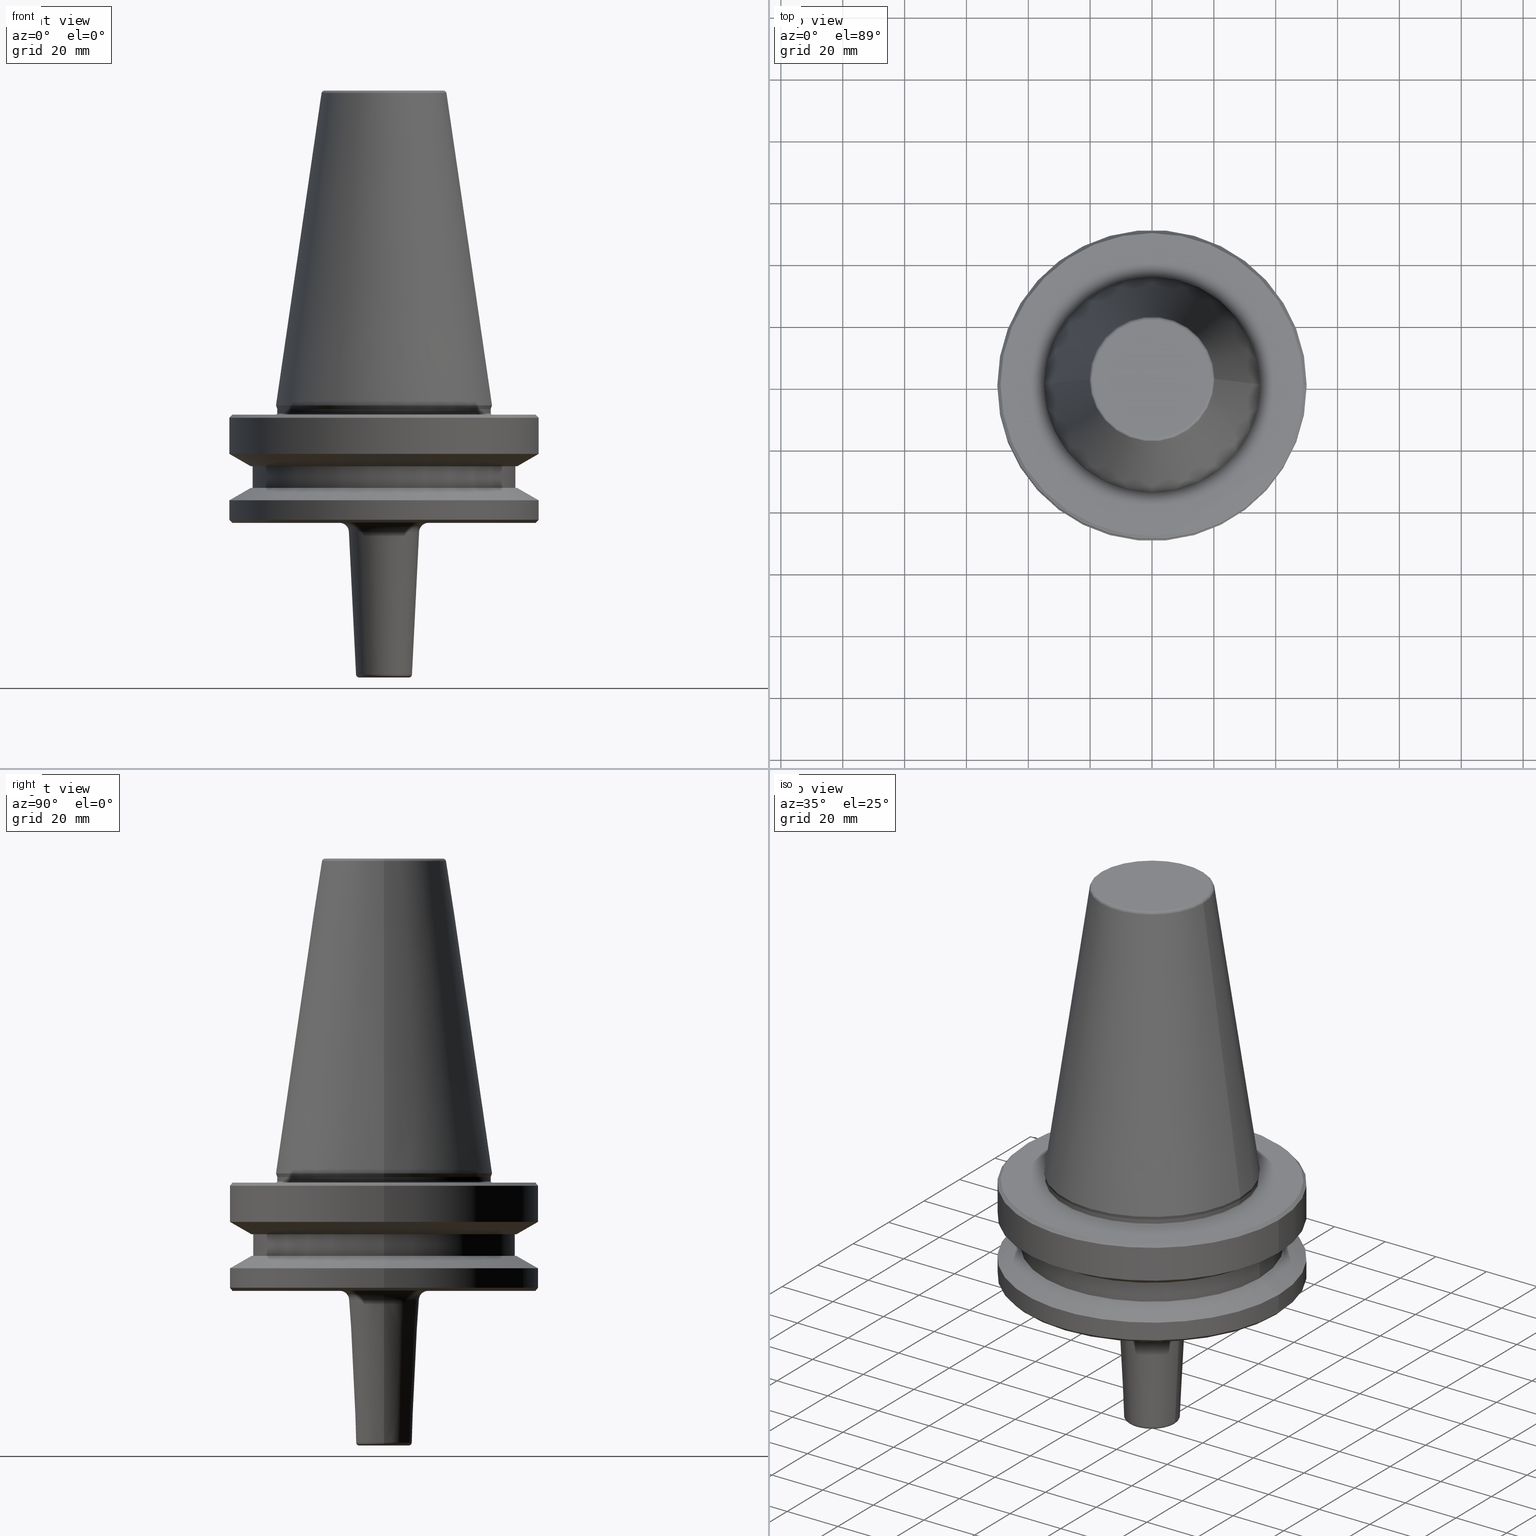
[diagram: canonical four-view strip — front | top / right | iso, engineering-drawing reading convention]
A machine part, canonical four-view strip (front | top / right | iso — engineering-drawing reading convention). The complete STEP part file that produces these views, byte-faithful:
ISO-10303-21;
HEADER;
FILE_DESCRIPTION (( 'STEP AP203' ),
    '1' );
FILE_NAME ('BT50 MCA10 50 AD+B-2.5G 25000 SL.STEP',
    '2019-05-24T10:49:42',
    ( '' ),
    ( '' ),
    'SwSTEP 2.0',
    'SolidWorks 2014',
    '' );
FILE_SCHEMA (( 'CONFIG_CONTROL_DESIGN' ));
ENDSEC;

DATA;
#1 = CARTESIAN_POINT ( 'NONE',  ( 0.0000000000000000000, 0.0000000000000000000, -38.00000000000002100 ) ) ;
#2 = DIRECTION ( 'NONE',  ( -0.0000000000000000000, -0.0000000000000000000, 1.000000000000000000 ) ) ;
#3 = ORIENTED_EDGE ( 'NONE', *, *, #559, .T. ) ;
#4 = DIRECTION ( 'NONE',  ( -1.000000000000000000, 1.224646799147353700E-016, 0.0000000000000000000 ) ) ;
#5 = CIRCLE ( 'NONE', #812, 19.21428326503027200 ) ;
#6 = VERTEX_POINT ( 'NONE', #478 ) ;
#7 = MANIFOLD_SOLID_BREP ( 'Fillet1', #767 ) ;
#8 = ORIENTED_EDGE ( 'NONE', *, *, #764, .F. ) ;
#9 = DIRECTION ( 'NONE',  ( 1.000000000000000000, 0.0000000000000000000, 0.0000000000000000000 ) ) ;
#10 = CONICAL_SURFACE ( 'NONE', #68, 34.50000000000000000, 0.3490658503988654500 ) ;
#11 = VECTOR ( 'NONE', #391, 1000.000000000000000 ) ;
#12 = APPROVAL_STATUS ( 'not_yet_approved' ) ;
#13 = DIRECTION ( 'NONE',  ( 1.000000000000000000, 0.0000000000000000000, 0.0000000000000000000 ) ) ;
#14 = LINE ( 'NONE', #813, #77 ) ;
#15 = AXIS2_PLACEMENT_3D ( 'NONE', #169, #722, #338 ) ;
#16 = DIRECTION ( 'NONE',  ( 1.000000000000000000, 0.0000000000000000000, 0.0000000000000000000 ) ) ;
#17 = CIRCLE ( 'NONE', #615, 42.50000000000000000 ) ;
#18 = CARTESIAN_POINT ( 'NONE',  ( 42.50000000000000000, 0.0000000000000000000, 124.5046326327850600 ) ) ;
#19 = CARTESIAN_POINT ( 'NONE',  ( 0.0000000000000000000, 0.0000000000000000000, -15.70022000322675400 ) ) ;
#20 = CARTESIAN_POINT ( 'NONE',  ( 0.0000000000000000000, 0.0000000000000000000, 124.5046326327850600 ) ) ;
#21 = CARTESIAN_POINT ( 'NONE',  ( 0.0000000000000000000, 0.0000000000000000000, -3.999999999999989800 ) ) ;
#22 = DIRECTION ( 'NONE',  ( -0.0000000000000000000, -0.0000000000000000000, 1.000000000000000000 ) ) ;
#23 = AXIS2_PLACEMENT_3D ( 'NONE', #822, #981, #268 ) ;
#24 = FACE_OUTER_BOUND ( 'NONE', #99, .T. ) ;
#25 = CARTESIAN_POINT ( 'NONE',  ( -34.50000000000000000, 4.255647627037052700E-015, -2.499999999999988500 ) ) ;
#26 = VERTEX_POINT ( 'NONE', #94 ) ;
#27 = AXIS2_PLACEMENT_3D ( 'NONE', #450, #824, #310 ) ;
#28 = ADVANCED_FACE ( 'NONE', ( #594 ), #794, .T. ) ;
#29 = ORIENTED_EDGE ( 'NONE', *, *, #854, .F. ) ;
#30 = DIRECTION ( 'NONE',  ( -0.0000000000000000000, -0.0000000000000000000, 1.000000000000000000 ) ) ;
#31 = DIRECTION ( 'NONE',  ( -0.0000000000000000000, -0.0000000000000000000, 1.000000000000000000 ) ) ;
#32 = AXIS2_PLACEMENT_3D ( 'NONE', #237, #447, #468 ) ;
#33 = EDGE_CURVE ( 'NONE', #759, #442, #955, .T. ) ;
#34 = DIRECTION ( 'NONE',  ( -0.8660254037844383700, 0.0000000000000000000, -0.5000000000000004400 ) ) ;
#35 = ORIENTED_EDGE ( 'NONE', *, *, #905, .T. ) ;
#36 = DIRECTION ( 'NONE',  ( 1.000000000000000000, 0.0000000000000000000, 0.0000000000000000000 ) ) ;
#37 = FACE_OUTER_BOUND ( 'NONE', #252, .T. ) ;
#38 = CARTESIAN_POINT ( 'NONE',  ( 34.50000000000000000, 0.0000000000000000000, -2.499999999999988500 ) ) ;
#39 = CARTESIAN_POINT ( 'NONE',  ( 0.0000000000000000000, 0.0000000000000000000, 0.0000000000000000000 ) ) ;
#40 = VERTEX_POINT ( 'NONE', #550 ) ;
#41 = CARTESIAN_POINT ( 'NONE',  ( 34.50000000000000000, 0.0000000000000000000, -1.167677903268202300 ) ) ;
#42 = CARTESIAN_POINT ( 'NONE',  ( 0.0000000000000000000, 0.0000000000000000000, -3.999999999999989800 ) ) ;
#43 = ADVANCED_BREP_SHAPE_REPRESENTATION ( 'BT50 MCA10 50 AD+B-2.5G 25000 SL', ( #7, #369 ), #928 ) ;
#44 = DIRECTION ( 'NONE',  ( 0.1443082272673000800, 1.767266086135278300E-017, -0.9895327864921754600 ) ) ;
#45 = CARTESIAN_POINT ( 'NONE',  ( 19.21428326503027200, 0.0000000000000000000, 100.7999999999999800 ) ) ;
#46 = CYLINDRICAL_SURFACE ( 'NONE', #578, 42.50000000000000000 ) ;
#47 = LOCAL_TIME ( 16, 19, 42.00000000000000000, #249 ) ;
#48 = DIRECTION ( 'NONE',  ( -0.0000000000000000000, -0.0000000000000000000, 1.000000000000000000 ) ) ;
#49 = CARTESIAN_POINT ( 'NONE',  ( 0.0000000000000000000, 0.0000000000000000000, -38.00000000000000700 ) ) ;
#50 = EDGE_LOOP ( 'NONE', ( #919, #380 ) ) ;
#51 = CIRCLE ( 'NONE', #833, 20.20381605152244500 ) ;
#52 = CARTESIAN_POINT ( 'NONE',  ( 0.0000000000000000000, 0.0000000000000000000, 100.9443082272672900 ) ) ;
#53 = DIRECTION ( 'NONE',  ( -0.3420201433256682700, 4.188538737676986200E-017, 0.9396926207859086500 ) ) ;
#54 = VERTEX_POINT ( 'NONE', #909 ) ;
#55 = AXIS2_PLACEMENT_3D ( 'NONE', #45, #1001, #664 ) ;
#56 = CIRCLE ( 'NONE', #290, 49.00000000000000000 ) ;
#57 = ORIENTED_EDGE ( 'NONE', *, *, #254, .F. ) ;
#58 = VERTEX_POINT ( 'NONE', #662 ) ;
#59 = DIRECTION ( 'NONE',  ( -0.0000000000000000000, -0.0000000000000000000, 1.000000000000000000 ) ) ;
#60 = ADVANCED_FACE ( 'NONE', ( #199 ), #334, .F. ) ;
#61 = ORIENTED_EDGE ( 'NONE', *, *, #596, .F. ) ;
#62 = CARTESIAN_POINT ( 'NONE',  ( -34.92499999999999700, 0.0000000000000000000, 0.0000000000000000000 ) ) ;
#63 = FACE_OUTER_BOUND ( 'NONE', #956, .T. ) ;
#64 = AXIS2_PLACEMENT_3D ( 'NONE', #420, #726, #255 ) ;
#65 = DIRECTION ( 'NONE',  ( 1.000000000000000000, 0.0000000000000000000, 0.0000000000000000000 ) ) ;
#66 = CALENDAR_DATE ( 2019, 24, 5 ) ;
#67 = CARTESIAN_POINT ( 'NONE',  ( 0.0000000000000000000, 0.0000000000000000000, -19.70000000000001000 ) ) ;
#68 = AXIS2_PLACEMENT_3D ( 'NONE', #504, #257, #103 ) ;
#69 = DIRECTION ( 'NONE',  ( 1.000000000000000000, 0.0000000000000000000, 0.0000000000000000000 ) ) ;
#70 = EDGE_LOOP ( 'NONE', ( #689, #246, #725, #997 ) ) ;
#71 = ADVANCED_FACE ( 'NONE', ( #536 ), #269, .T. ) ;
#72 = DATE_TIME_ROLE ( 'classification_date' ) ;
#73 = CARTESIAN_POINT ( 'NONE',  ( 0.0000000000000000000, 0.0000000000000000000, -87.00000000000002800 ) ) ;
#74 = CARTESIAN_POINT ( 'NONE',  ( -8.048750780275007300, 9.856876880198550700E-016, -87.00000000000002800 ) ) ;
#75 = ORIENTED_EDGE ( 'NONE', *, *, #877, .F. ) ;
#76 = PERSON_AND_ORGANIZATION_ROLE ( 'creator' ) ;
#77 = VECTOR ( 'NONE', #816, 1000.000000000000200 ) ;
#78 = VECTOR ( 'NONE', #448, 1000.000000000000000 ) ;
#79 = CARTESIAN_POINT ( 'NONE',  ( 0.0000000000000000000, 0.0000000000000000000, -19.70000000000001000 ) ) ;
#80 = EDGE_LOOP ( 'NONE', ( #785, #375, #768, #989 ) ) ;
#81 = EDGE_LOOP ( 'NONE', ( #165, #3 ) ) ;
#82 = EDGE_CURVE ( 'NONE', #458, #262, #746, .T. ) ;
#83 = VERTEX_POINT ( 'NONE', #127 ) ;
#84 = DIRECTION ( 'NONE',  ( -0.0000000000000000000, -0.0000000000000000000, 1.000000000000000000 ) ) ;
#85 = ORIENTED_EDGE ( 'NONE', *, *, #609, .F. ) ;
#86 = ADVANCED_FACE ( 'NONE', ( #904 ), #118, .T. ) ;
#87 = VECTOR ( 'NONE', #185, 1000.000000000000000 ) ;
#88 = DIRECTION ( 'NONE',  ( 0.0000000000000000000, 0.0000000000000000000, -1.000000000000000000 ) ) ;
#89 = CIRCLE ( 'NONE', #333, 43.07217782649105000 ) ;
#90 = PERSON_AND_ORGANIZATION ( #882, #525 ) ;
#91 = FACE_OUTER_BOUND ( 'NONE', #191, .T. ) ;
#92 = DIRECTION ( 'NONE',  ( -1.000000000000000000, 0.0000000000000000000, -0.0000000000000000000 ) ) ;
#93 = ORIENTED_EDGE ( 'NONE', *, *, #951, .F. ) ;
#94 = CARTESIAN_POINT ( 'NONE',  ( -50.00000000000000000, 6.123233995736766100E-015, -30.69977999677324500 ) ) ;
#95 = CC_DESIGN_APPROVAL ( #277, ( #120 ) ) ;
#96 = DIRECTION ( 'NONE',  ( -0.0000000000000000000, -0.0000000000000000000, 1.000000000000000000 ) ) ;
#97 = FACE_OUTER_BOUND ( 'NONE', #155, .T. ) ;
#98 = EDGE_CURVE ( 'NONE', #352, #132, #295, .T. ) ;
#99 = EDGE_LOOP ( 'NONE', ( #208, #291, #445, #8 ) ) ;
#100 = CARTESIAN_POINT ( 'NONE',  ( 0.0000000000000000000, 0.0000000000000000000, -87.04993761694393600 ) ) ;
#101 = CIRCLE ( 'NONE', #517, 14.35374765917515600 ) ;
#102 = AXIS2_PLACEMENT_3D ( 'NONE', #583, #108, #878 ) ;
#103 = DIRECTION ( 'NONE',  ( 1.000000000000000000, 0.0000000000000000000, 0.0000000000000000000 ) ) ;
#104 = CIRCLE ( 'NONE', #483, 43.07217782649103600 ) ;
#105 = CARTESIAN_POINT ( 'NONE',  ( 43.07217782649105000, 5.699027233244276800E-015, -26.69999999999998900 ) ) ;
#106 = CARTESIAN_POINT ( 'NONE',  ( 0.0000000000000000000, 0.0000000000000000000, -37.00000000000002100 ) ) ;
#107 = ORIENTED_EDGE ( 'NONE', *, *, #724, .T. ) ;
#108 = DIRECTION ( 'NONE',  ( 0.0000000000000000000, 0.0000000000000000000, -1.000000000000000000 ) ) ;
#109 = DIRECTION ( 'NONE',  ( 1.000000000000000000, 0.0000000000000000000, 0.0000000000000000000 ) ) ;
#110 = CARTESIAN_POINT ( 'NONE',  ( 0.0000000000000000000, 0.0000000000000000000, -38.00000000000000700 ) ) ;
#111 = ORIENTED_EDGE ( 'NONE', *, *, #866, .F. ) ;
#112 = ORIENTED_EDGE ( 'NONE', *, *, #848, .F. ) ;
#113 = VERTEX_POINT ( 'NONE', #386 ) ;
#114 = ADVANCED_FACE ( 'NONE', ( #716 ), #875, .T. ) ;
#115 = FACE_OUTER_BOUND ( 'NONE', #998, .T. ) ;
#116 = PERSON_AND_ORGANIZATION ( #882, #525 ) ;
#117 = DIRECTION ( 'NONE',  ( -0.7071067811865474600, 0.0000000000000000000, -0.7071067811865475700 ) ) ;
#118 = CONICAL_SURFACE ( 'NONE', #614, 34.92499999999999700, 0.1448138465474120600 ) ;
#119 = COORDINATED_UNIVERSAL_TIME_OFFSET ( 5, 30, .AHEAD. ) ;
#120 = PRODUCT_DEFINITION ( 'UNKNOWN', '', #727, #415 ) ;
#121 = CARTESIAN_POINT ( 'NONE',  ( -50.00000000000000000, 6.123233995736766100E-015, 124.5046326327850600 ) ) ;
#122 = DIRECTION ( 'NONE',  ( 1.000000000000000000, 0.0000000000000000000, 0.0000000000000000000 ) ) ;
#123 = ORIENTED_EDGE ( 'NONE', *, *, #655, .T. ) ;
#124 = DIRECTION ( 'NONE',  ( 1.224646799147353200E-016, 1.000000000000000000, 0.0000000000000000000 ) ) ;
#125 = CARTESIAN_POINT ( 'NONE',  ( 0.0000000000000000000, 0.0000000000000000000, -41.00000000000000700 ) ) ;
#126 = AXIS2_PLACEMENT_3D ( 'NONE', #597, #666, #122 ) ;
#127 = CARTESIAN_POINT ( 'NONE',  ( 43.07217782649103600, 0.0000000000000000000, -19.70000000000001000 ) ) ;
#128 = AXIS2_PLACEMENT_3D ( 'NONE', #156, #753, #36 ) ;
#129 = EDGE_LOOP ( 'NONE', ( #697, #821, #815, #747 ) ) ;
#130 = APPROVAL_DATE_TIME ( #735, #277 ) ;
#131 = ORIENTED_EDGE ( 'NONE', *, *, #953, .F. ) ;
#132 = VERTEX_POINT ( 'NONE', #429 ) ;
#133 = AXIS2_PLACEMENT_3D ( 'NONE', #408, #356, #587 ) ;
#134 = DIRECTION ( 'NONE',  ( 1.000000000000000000, 0.0000000000000000000, 0.0000000000000000000 ) ) ;
#135 = DIRECTION ( 'NONE',  ( 1.000000000000000000, 0.0000000000000000000, 0.0000000000000000000 ) ) ;
#136 = VECTOR ( 'NONE', #590, 1000.000000000000000 ) ;
#137 = ADVANCED_FACE ( 'NONE', ( #63 ), #473, .T. ) ;
#138 = ORIENTED_EDGE ( 'NONE', *, *, #346, .T. ) ;
#139 = CIRCLE ( 'NONE', #307, 42.50000000000000000 ) ;
#140 = ORIENTED_EDGE ( 'NONE', *, *, #884, .F. ) ;
#141 = EDGE_LOOP ( 'NONE', ( #974, #831, #461, #634 ) ) ;
#142 = EDGE_LOOP ( 'NONE', ( #359, #710, #221, #111 ) ) ;
#143 = CONICAL_SURFACE ( 'NONE', #157, 11.50000000000003600, 0.04995839572194250800 ) ;
#144 = LINE ( 'NONE', #457, #87 ) ;
#145 = LINE ( 'NONE', #817, #325 ) ;
#146 = ORIENTED_EDGE ( 'NONE', *, *, #964, .T. ) ;
#147 = LOCAL_TIME ( 16, 19, 42.00000000000000000, #353 ) ;
#148 = VECTOR ( 'NONE', #409, 1000.000000000000000 ) ;
#149 = FACE_OUTER_BOUND ( 'NONE', #344, .T. ) ;
#150 = CC_DESIGN_APPROVAL ( #330, ( #727 ) ) ;
#151 = DIRECTION ( 'NONE',  ( 1.000000000000000000, 0.0000000000000000000, 0.0000000000000000000 ) ) ;
#152 = ORIENTED_EDGE ( 'NONE', *, *, #177, .F. ) ;
#153 = CARTESIAN_POINT ( 'NONE',  ( 0.0000000000000000000, 0.0000000000000000000, 124.5046326327850600 ) ) ;
#154 = EDGE_LOOP ( 'NONE', ( #865, #393, #464, #807 ) ) ;
#155 = EDGE_LOOP ( 'NONE', ( #385, #654, #454, #435 ) ) ;
#156 = CARTESIAN_POINT ( 'NONE',  ( 0.0000000000000000000, 0.0000000000000000000, -2.999999999999988900 ) ) ;
#157 = AXIS2_PLACEMENT_3D ( 'NONE', #184, #852, #69 ) ;
#158 = CONICAL_SURFACE ( 'NONE', #233, 50.00000000000000000, 0.7853981633974482800 ) ;
#159 = PERSON_AND_ORGANIZATION_ROLE ( 'design_owner' ) ;
#160 = ORIENTED_EDGE ( 'NONE', *, *, #623, .T. ) ;
#161 = AXIS2_PLACEMENT_3D ( 'NONE', #883, #365, #624 ) ;
#162 = CIRCLE ( 'NONE', #799, 0.5000000000000004400 ) ;
#163 = CIRCLE ( 'NONE', #381, 42.50000000000000000 ) ;
#164 = DIRECTION ( 'NONE',  ( -1.000000000000000000, 0.0000000000000000000, 0.0000000000000000000 ) ) ;
#165 = ORIENTED_EDGE ( 'NONE', *, *, #844, .T. ) ;
#166 = VERTEX_POINT ( 'NONE', #182 ) ;
#167 = DIRECTION ( 'NONE',  ( 0.0000000000000000000, 0.0000000000000000000, -1.000000000000000000 ) ) ;
#168 = ORIENTED_EDGE ( 'NONE', *, *, #177, .T. ) ;
#169 = CARTESIAN_POINT ( 'NONE',  ( -35.00000000000000000, 4.286263797015736500E-015, -2.500000000000002200 ) ) ;
#170 = EDGE_LOOP ( 'NONE', ( #658, #152, #858, #845 ) ) ;
#171 = AXIS2_PLACEMENT_3D ( 'NONE', #110, #263, #418 ) ;
#172 = CARTESIAN_POINT ( 'NONE',  ( 0.0000000000000000000, 0.0000000000000000000, -2.999999999999988900 ) ) ;
#173 = CIRCLE ( 'NONE', #601, 20.20381605152244500 ) ;
#174 = DIRECTION ( 'NONE',  ( 1.000000000000000000, 0.0000000000000000000, 0.0000000000000000000 ) ) ;
#175 = DIRECTION ( 'NONE',  ( 0.0000000000000000000, -1.000000000000000000, 0.0000000000000000000 ) ) ;
#176 = CIRCLE ( 'NONE', #260, 42.50000000000000000 ) ;
#177 = EDGE_CURVE ( 'NONE', #941, #763, #89, .T. ) ;
#178 = PLANE ( 'NONE',  #64 ) ;
#179 = DIRECTION ( 'NONE',  ( -0.0000000000000000000, -0.0000000000000000000, 1.000000000000000000 ) ) ;
#180 = ORIENTED_EDGE ( 'NONE', *, *, #777, .T. ) ;
#181 = TOROIDAL_SURFACE ( 'NONE', #294, 8.048750780275007300, 1.000000000000001300 ) ;
#182 = CARTESIAN_POINT ( 'NONE',  ( -14.35374765917515600, 1.757827112657767000E-015, -38.00000000000000700 ) ) ;
#183 = FACE_OUTER_BOUND ( 'NONE', #695, .T. ) ;
#184 = CARTESIAN_POINT ( 'NONE',  ( 0.0000000000000000000, 0.0000000000000000000, -38.00000000000000700 ) ) ;
#185 = DIRECTION ( 'NONE',  ( 0.8660254037844388200, 0.0000000000000000000, 0.4999999999999997200 ) ) ;
#186 = AXIS2_PLACEMENT_3D ( 'NONE', #319, #864, #245 ) ;
#187 = CARTESIAN_POINT ( 'NONE',  ( -50.00000000000000000, 6.123233995736766100E-015, -37.00000000000002100 ) ) ;
#188 = CONICAL_SURFACE ( 'NONE', #542, 50.00000000000000000, 0.7853981633974482800 ) ;
#189 = AXIS2_PLACEMENT_3D ( 'NONE', #1, #532, #65 ) ;
#190 = LINE ( 'NONE', #530, #477 ) ;
#191 = EDGE_LOOP ( 'NONE', ( #702, #112, #708, #495 ) ) ;
#192 = CARTESIAN_POINT ( 'NONE',  ( -50.00000000000000000, 0.0000000000000000000, -30.69977999677324500 ) ) ;
#193 = AXIS2_PLACEMENT_3D ( 'NONE', #661, #809, #887 ) ;
#194 = CC_DESIGN_PERSON_AND_ORGANIZATION_ASSIGNMENT ( #906, #943, ( #727 ) ) ;
#195 = EDGE_LOOP ( 'NONE', ( #600, #978, #204, #801 ) ) ;
#196 = DIRECTION ( 'NONE',  ( -0.0000000000000000000, -0.0000000000000000000, 1.000000000000000000 ) ) ;
#197 = EDGE_LOOP ( 'NONE', ( #168, #123 ) ) ;
#198 = CARTESIAN_POINT ( 'NONE',  ( 50.00000000000000000, 6.123233995736766100E-015, -30.69977999677324500 ) ) ;
#199 = FACE_OUTER_BOUND ( 'NONE', #129, .T. ) ;
#200 = CARTESIAN_POINT ( 'NONE',  ( 0.0000000000000000000, 0.0000000000000000000, -19.70000000000001000 ) ) ;
#201 = LINE ( 'NONE', #347, #797 ) ;
#202 = CARTESIAN_POINT ( 'NONE',  ( 0.0000000000000000000, 43.07217782649103600, -19.70000000000000300 ) ) ;
#203 = EDGE_CURVE ( 'NONE', #673, #507, #946, .T. ) ;
#204 = ORIENTED_EDGE ( 'NONE', *, *, #769, .F. ) ;
#205 = DIRECTION ( 'NONE',  ( 1.000000000000000000, 0.0000000000000000000, 0.0000000000000000000 ) ) ;
#206 = DIRECTION ( 'NONE',  ( -0.0000000000000000000, -0.0000000000000000000, 1.000000000000000000 ) ) ;
#207 = FACE_OUTER_BOUND ( 'NONE', #70, .T. ) ;
#208 = ORIENTED_EDGE ( 'NONE', *, *, #250, .F. ) ;
#209 = CARTESIAN_POINT ( 'NONE',  ( 0.0000000000000000000, 0.0000000000000000000, -88.00000000000002800 ) ) ;
#210 = CC_DESIGN_PERSON_AND_ORGANIZATION_ASSIGNMENT ( #557, #76, ( #120 ) ) ;
#211 = AXIS2_PLACEMENT_3D ( 'NONE', #850, #455, #520 ) ;
#212 = CARTESIAN_POINT ( 'NONE',  ( 0.0000000000000000000, 0.0000000000000000000, -38.00000000000002100 ) ) ;
#213 = FACE_OUTER_BOUND ( 'NONE', #922, .T. ) ;
#214 = AXIS2_PLACEMENT_3D ( 'NONE', #745, #650, #743 ) ;
#215 = ADVANCED_FACE ( 'NONE', ( #757 ), #552, .T. ) ;
#216 = DIRECTION ( 'NONE',  ( -0.0000000000000000000, -0.0000000000000000000, 1.000000000000000000 ) ) ;
#217 = AXIS2_PLACEMENT_3D ( 'NONE', #106, #810, #345 ) ;
#218 = ORIENTED_EDGE ( 'NONE', *, *, #589, .T. ) ;
#219 = CARTESIAN_POINT ( 'NONE',  ( 8.048750780275005600, 0.0000000000000000000, -88.00000000000002800 ) ) ;
#220 = DIRECTION ( 'NONE',  ( -0.0000000000000000000, -0.0000000000000000000, 1.000000000000000000 ) ) ;
#221 = ORIENTED_EDGE ( 'NONE', *, *, #566, .T. ) ;
#222 = CARTESIAN_POINT ( 'NONE',  ( 0.0000000000000000000, 0.0000000000000000000, -19.70000000000001000 ) ) ;
#223 = ORIENTED_EDGE ( 'NONE', *, *, #623, .F. ) ;
#224 = AXIS2_PLACEMENT_3D ( 'NONE', #966, #649, #688 ) ;
#225 = CARTESIAN_POINT ( 'NONE',  ( 49.00000000000000000, 6.062001655779398500E-015, -2.999999999999988900 ) ) ;
#226 = VECTOR ( 'NONE', #34, 1000.000000000000000 ) ;
#227 = ADVANCED_FACE ( 'NONE', ( #736 ), #524, .T. ) ;
#228 = DIRECTION ( 'NONE',  ( -0.0000000000000000000, -0.0000000000000000000, 1.000000000000000000 ) ) ;
#229 = AXIS2_PLACEMENT_3D ( 'NONE', #39, #216, #13 ) ;
#230 = ORIENTED_EDGE ( 'NONE', *, *, #591, .F. ) ;
#231 = AXIS2_PLACEMENT_3D ( 'NONE', #571, #899, #840 ) ;
#232 = ORIENTED_EDGE ( 'NONE', *, *, #769, .T. ) ;
#233 = AXIS2_PLACEMENT_3D ( 'NONE', #962, #320, #891 ) ;
#234 = FACE_OUTER_BOUND ( 'NONE', #570, .T. ) ;
#235 = APPLICATION_PROTOCOL_DEFINITION ( 'international standard', 'config_control_design', 1994, #696 ) ;
#236 = EDGE_CURVE ( 'NONE', #707, #881, #499, .T. ) ;
#237 = CARTESIAN_POINT ( 'NONE',  ( 0.0000000000000000000, 0.0000000000000000000, 100.7999999999999800 ) ) ;
#238 = ORIENTED_EDGE ( 'NONE', *, *, #292, .F. ) ;
#239 = CC_DESIGN_PERSON_AND_ORGANIZATION_ASSIGNMENT ( #90, #394, ( #727 ) ) ;
#240 = ADVANCED_FACE ( 'NONE', ( #349 ), #321, .T. ) ;
#241 =( LENGTH_UNIT ( ) NAMED_UNIT ( * ) SI_UNIT ( .MILLI., .METRE. ) );
#242 = ORIENTED_EDGE ( 'NONE', *, *, #413, .F. ) ;
#243 = DIRECTION ( 'NONE',  ( 1.000000000000000000, 0.0000000000000000000, 0.0000000000000000000 ) ) ;
#244 = ORIENTED_EDGE ( 'NONE', *, *, #814, .T. ) ;
#245 = DIRECTION ( 'NONE',  ( 1.000000000000000000, 0.0000000000000000000, 0.0000000000000000000 ) ) ;
#246 = ORIENTED_EDGE ( 'NONE', *, *, #991, .T. ) ;
#247 = EDGE_CURVE ( 'NONE', #673, #58, #162, .T. ) ;
#248 = CARTESIAN_POINT ( 'NONE',  ( 0.0000000000000000000, 0.0000000000000000000, -2.999999999999988900 ) ) ;
#249 = COORDINATED_UNIVERSAL_TIME_OFFSET ( 5, 30, .AHEAD. ) ;
#250 = EDGE_CURVE ( 'NONE', #166, #331, #713, .T. ) ;
#251 = PRODUCT_DEFINITION_SHAPE ( 'NONE', 'NONE',  #120 ) ;
#252 = EDGE_LOOP ( 'NONE', ( #765, #364, #610, #698 ) ) ;
#253 = ORIENTED_EDGE ( 'NONE', *, *, #911, .F. ) ;
#254 = EDGE_CURVE ( 'NONE', #266, #568, #293, .T. ) ;
#255 = DIRECTION ( 'NONE',  ( -1.000000000000000000, 0.0000000000000000000, -0.0000000000000000000 ) ) ;
#256 = DIRECTION ( 'NONE',  ( -0.0000000000000000000, -0.0000000000000000000, 1.000000000000000000 ) ) ;
#257 = DIRECTION ( 'NONE',  ( -0.0000000000000000000, -0.0000000000000000000, 1.000000000000000000 ) ) ;
#258 = CIRCLE ( 'NONE', #304, 35.00000000000000000 ) ;
#259 = CARTESIAN_POINT ( 'NONE',  ( 0.0000000000000000000, 0.0000000000000000000, -87.04993761694393600 ) ) ;
#260 = AXIS2_PLACEMENT_3D ( 'NONE', #535, #302, #692 ) ;
#261 = ORIENTED_EDGE ( 'NONE', *, *, #894, .F. ) ;
#262 = VERTEX_POINT ( 'NONE', #820 ) ;
#263 = DIRECTION ( 'NONE',  ( -0.0000000000000000000, -0.0000000000000000000, 1.000000000000000000 ) ) ;
#264 = EDGE_CURVE ( 'NONE', #54, #458, #926, .T. ) ;
#265 = DIRECTION ( 'NONE',  ( -0.0000000000000000000, -0.0000000000000000000, 1.000000000000000000 ) ) ;
#266 = VERTEX_POINT ( 'NONE', #355 ) ;
#267 = CARTESIAN_POINT ( 'NONE',  ( 8.048750780275007300, 0.0000000000000000000, -87.00000000000002800 ) ) ;
#268 = DIRECTION ( 'NONE',  ( 1.000000000000000000, 0.0000000000000000000, 0.0000000000000000000 ) ) ;
#269 = CYLINDRICAL_SURFACE ( 'NONE', #126, 50.00000000000000000 ) ;
#270 = AXIS2_PLACEMENT_3D ( 'NONE', #638, #167, #717 ) ;
#271 = LOCAL_TIME ( 16, 19, 42.00000000000000000, #475 ) ;
#272 = DIRECTION ( 'NONE',  ( 0.0000000000000000000, 0.0000000000000000000, -1.000000000000000000 ) ) ;
#273 = ADVANCED_FACE ( 'NONE', ( #115 ), #10, .T. ) ;
#274 = ORIENTED_EDGE ( 'NONE', *, *, #674, .F. ) ;
#275 = CARTESIAN_POINT ( 'NONE',  ( -50.00000000000000000, 6.123233995736766100E-015, -3.999999999999989800 ) ) ;
#276 = CARTESIAN_POINT ( 'NONE',  ( -49.00000000000000000, 6.000769315822030900E-015, -38.00000000000002100 ) ) ;
#277 = APPROVAL ( #12, 'UNSPECIFIED' ) ;
#278 = EDGE_CURVE ( 'NONE', #493, #507, #629, .T. ) ;
#279 = ADVANCED_FACE ( 'NONE', ( #993 ), #758, .T. ) ;
#280 = CARTESIAN_POINT ( 'NONE',  ( 0.0000000000000000000, 0.0000000000000000000, 101.7999999999999800 ) ) ;
#281 = FACE_OUTER_BOUND ( 'NONE', #81, .T. ) ;
#282 = LINE ( 'NONE', #744, #676 ) ;
#283 = DIRECTION ( 'NONE',  ( 1.000000000000000000, 0.0000000000000000000, 0.0000000000000000000 ) ) ;
#284 = ORIENTED_EDGE ( 'NONE', *, *, #790, .T. ) ;
#285 = VERTEX_POINT ( 'NONE', #756 ) ;
#286 = DIRECTION ( 'NONE',  ( 0.0000000000000000000, 0.0000000000000000000, -1.000000000000000000 ) ) ;
#287 = VERTEX_POINT ( 'NONE', #289 ) ;
#288 = ORIENTED_EDGE ( 'NONE', *, *, #924, .T. ) ;
#289 = CARTESIAN_POINT ( 'NONE',  ( 9.047503119152851900, 0.0000000000000000000, -87.04993761694393600 ) ) ;
#290 = AXIS2_PLACEMENT_3D ( 'NONE', #248, #795, #332 ) ;
#291 = ORIENTED_EDGE ( 'NONE', *, *, #635, .T. ) ;
#292 = EDGE_CURVE ( 'NONE', #54, #113, #51, .T. ) ;
#293 = LINE ( 'NONE', #971, #372 ) ;
#294 = AXIS2_PLACEMENT_3D ( 'NONE', #398, #31, #783 ) ;
#295 = LINE ( 'NONE', #506, #501 ) ;
#296 = DIRECTION ( 'NONE',  ( -0.0000000000000000000, -0.0000000000000000000, 1.000000000000000000 ) ) ;
#297 = APPROVAL_DATE_TIME ( #503, #330 ) ;
#298 = DIRECTION ( 'NONE',  ( -0.0000000000000000000, -0.0000000000000000000, 1.000000000000000000 ) ) ;
#299 = FACE_OUTER_BOUND ( 'NONE', #195, .T. ) ;
#300 = CARTESIAN_POINT ( 'NONE',  ( 42.50000000000000000, 0.0000000000000000000, -26.69999999999998900 ) ) ;
#301 = ORIENTED_EDGE ( 'NONE', *, *, #82, .T. ) ;
#302 = DIRECTION ( 'NONE',  ( -0.0000000000000000000, -0.0000000000000000000, 1.000000000000000000 ) ) ;
#303 = DIRECTION ( 'NONE',  ( 1.000000000000000000, 0.0000000000000000000, 0.0000000000000000000 ) ) ;
#304 = AXIS2_PLACEMENT_3D ( 'NONE', #172, #802, #889 ) ;
#305 = ORIENTED_EDGE ( 'NONE', *, *, #986, .F. ) ;
#306 = ADVANCED_FACE ( 'NONE', ( #234 ), #181, .T. ) ;
#307 = AXIS2_PLACEMENT_3D ( 'NONE', #79, #228, #672 ) ;
#308 = DIRECTION ( 'NONE',  ( 1.000000000000000000, 0.0000000000000000000, 0.0000000000000000000 ) ) ;
#309 = CIRCLE ( 'NONE', #27, 2.999999999999999100 ) ;
#310 = DIRECTION ( 'NONE',  ( -1.000000000000000000, 1.224646799147353500E-016, 0.0000000000000000000 ) ) ;
#311 = CIRCLE ( 'NONE', #189, 49.00000000000000000 ) ;
#312 = DIRECTION ( 'NONE',  ( 1.000000000000000000, 0.0000000000000000000, 0.0000000000000000000 ) ) ;
#313 = DIRECTION ( 'NONE',  ( 1.000000000000000000, 0.0000000000000000000, 0.0000000000000000000 ) ) ;
#314 = VERTEX_POINT ( 'NONE', #219 ) ;
#315 = CARTESIAN_POINT ( 'NONE',  ( 11.50000000000003600, 0.0000000000000000000, -38.00000000000000700 ) ) ;
#316 = ADVANCED_FACE ( 'NONE', ( #612 ), #862, .T. ) ;
#317 = ORIENTED_EDGE ( 'NONE', *, *, #709, .T. ) ;
#318 = AXIS2_PLACEMENT_3D ( 'NONE', #67, #637, #312 ) ;
#319 = CARTESIAN_POINT ( 'NONE',  ( 0.0000000000000000000, 0.0000000000000000000, -1.167677903268202300 ) ) ;
#320 = DIRECTION ( 'NONE',  ( 0.0000000000000000000, 0.0000000000000000000, -1.000000000000000000 ) ) ;
#321 = CONICAL_SURFACE ( 'NONE', #102, 50.00000000000000000, 1.047197551196597200 ) ;
#322 = PERSON_AND_ORGANIZATION ( #882, #525 ) ;
#323 = VECTOR ( 'NONE', #265, 1000.000000000000000 ) ;
#324 = ADVANCED_FACE ( 'NONE', ( #603 ), #1003, .T. ) ;
#325 = VECTOR ( 'NONE', #509, 999.9999999999998900 ) ;
#326 = APPROVAL_PERSON_ORGANIZATION ( #529, #330, #944 ) ;
#327 = EDGE_CURVE ( 'NONE', #720, #6, #555, .T. ) ;
#328 = CIRCLE ( 'NONE', #859, 19.21428326503027200 ) ;
#329 = DIRECTION ( 'NONE',  ( -0.0000000000000000000, -0.0000000000000000000, 1.000000000000000000 ) ) ;
#330 = APPROVAL ( #399, 'UNSPECIFIED' ) ;
#331 = VERTEX_POINT ( 'NONE', #1000 ) ;
#332 = DIRECTION ( 'NONE',  ( 1.000000000000000000, 0.0000000000000000000, 0.0000000000000000000 ) ) ;
#333 = AXIS2_PLACEMENT_3D ( 'NONE', #348, #296, #618 ) ;
#334 = TOROIDAL_SURFACE ( 'NONE', #562, 14.35374765917515600, 3.000000000000000000 ) ;
#335 = ORIENTED_EDGE ( 'NONE', *, *, #582, .F. ) ;
#336 = CARTESIAN_POINT ( 'NONE',  ( 11.35749064254162000, 0.0000000000000000000, -40.85018714916832700 ) ) ;
#337 = FACE_BOUND ( 'NONE', #569, .T. ) ;
#338 = DIRECTION ( 'NONE',  ( -1.000000000000000000, 1.224646799147349500E-016, 0.0000000000000000000 ) ) ;
#339 = CARTESIAN_POINT ( 'NONE',  ( 34.92499999999999700, 4.277078946022130900E-015, 0.0000000000000000000 ) ) ;
#340 = ADVANCED_FACE ( 'NONE', ( #787 ), #947, .T. ) ;
#341 = CIRCLE ( 'NONE', #733, 1.000000000000000900 ) ;
#342 = ORIENTED_EDGE ( 'NONE', *, *, #247, .F. ) ;
#343 = DIRECTION ( 'NONE',  ( 1.000000000000000000, 0.0000000000000000000, 0.0000000000000000000 ) ) ;
#344 = EDGE_LOOP ( 'NONE', ( #608, #29, #667, #403 ) ) ;
#345 = DIRECTION ( 'NONE',  ( 1.000000000000000000, 0.0000000000000000000, 0.0000000000000000000 ) ) ;
#346 = EDGE_CURVE ( 'NONE', #507, #458, #145, .T. ) ;
#347 = CARTESIAN_POINT ( 'NONE',  ( -34.50000000000000000, 4.225031457058368900E-015, -1.167677903268202300 ) ) ;
#348 = CARTESIAN_POINT ( 'NONE',  ( 0.0000000000000000000, 0.0000000000000000000, -26.69999999999998900 ) ) ;
#349 = FACE_OUTER_BOUND ( 'NONE', #170, .T. ) ;
#350 = DIRECTION ( 'NONE',  ( -0.0000000000000000000, -0.0000000000000000000, 1.000000000000000000 ) ) ;
#351 = FACE_OUTER_BOUND ( 'NONE', #80, .T. ) ;
#352 = VERTEX_POINT ( 'NONE', #741 ) ;
#353 = COORDINATED_UNIVERSAL_TIME_OFFSET ( 5, 30, .AHEAD. ) ;
#354 = CONICAL_SURFACE ( 'NONE', #538, 49.00000000000000000, 0.7853981633974482800 ) ;
#355 = CARTESIAN_POINT ( 'NONE',  ( -43.07217782649103600, 5.699027233244276000E-015, -19.70000000000001000 ) ) ;
#356 = DIRECTION ( 'NONE',  ( -0.0000000000000000000, -0.0000000000000000000, 1.000000000000000000 ) ) ;
#357 = CARTESIAN_POINT ( 'NONE',  ( -34.50000000000000000, 4.225031457058368900E-015, -1.167677903268202300 ) ) ;
#358 = ORIENTED_EDGE ( 'NONE', *, *, #986, .T. ) ;
#359 = ORIENTED_EDGE ( 'NONE', *, *, #872, .F. ) ;
#360 = CIRCLE ( 'NONE', #459, 34.50000000000000000 ) ;
#361 = UNCERTAINTY_MEASURE_WITH_UNIT (LENGTH_MEASURE( 1.000000000000000100E-005 ), #241, 'distance_accuracy_value', 'NONE');
#362 = DIRECTION ( 'NONE',  ( 1.000000000000000000, 0.0000000000000000000, 0.0000000000000000000 ) ) ;
#363 = FACE_OUTER_BOUND ( 'NONE', #556, .T. ) ;
#364 = ORIENTED_EDGE ( 'NONE', *, *, #829, .T. ) ;
#365 = DIRECTION ( 'NONE',  ( -0.0000000000000000000, -0.0000000000000000000, 1.000000000000000000 ) ) ;
#366 = ORIENTED_EDGE ( 'NONE', *, *, #203, .F. ) ;
#367 = CIRCLE ( 'NONE', #133, 49.00000000000000000 ) ;
#368 = ORIENTED_EDGE ( 'NONE', *, *, #777, .F. ) ;
#369 = AXIS2_PLACEMENT_3D ( 'NONE', #472, #857, #313 ) ;
#370 = AXIS2_PLACEMENT_3D ( 'NONE', #798, #879, #406 ) ;
#371 = DIRECTION ( 'NONE',  ( -0.0000000000000000000, -0.0000000000000000000, 1.000000000000000000 ) ) ;
#372 = VECTOR ( 'NONE', #584, 1000.000000000000000 ) ;
#373 = CIRCLE ( 'NONE', #426, 9.047503119152851900 ) ;
#374 = AXIS2_PLACEMENT_3D ( 'NONE', #481, #30, #577 ) ;
#375 = ORIENTED_EDGE ( 'NONE', *, *, #894, .T. ) ;
#376 = DIRECTION ( 'NONE',  ( 0.0000000000000000000, 0.0000000000000000000, -1.000000000000000000 ) ) ;
#377 = CARTESIAN_POINT ( 'NONE',  ( 0.0000000000000000000, 0.0000000000000000000, -38.00000000000000700 ) ) ;
#378 = EDGE_LOOP ( 'NONE', ( #238, #648, #301, #253 ) ) ;
#379 = ORIENTED_EDGE ( 'NONE', *, *, #958, .F. ) ;
#380 = ORIENTED_EDGE ( 'NONE', *, *, #596, .T. ) ;
#381 = AXIS2_PLACEMENT_3D ( 'NONE', #592, #463, #547 ) ;
#382 = FACE_OUTER_BOUND ( 'NONE', #750, .T. ) ;
#383 = ADVANCED_FACE ( 'NONE', ( #351 ), #354, .T. ) ;
#384 = CIRCLE ( 'NONE', #224, 50.00000000000000000 ) ;
#385 = ORIENTED_EDGE ( 'NONE', *, *, #709, .F. ) ;
#386 = CARTESIAN_POINT ( 'NONE',  ( -20.20381605152244500, 0.0000000000000000000, 100.9443082272672900 ) ) ;
#387 = VERTEX_POINT ( 'NONE', #642 ) ;
#388 = VECTOR ( 'NONE', #44, 1000.000000000000000 ) ;
#389 = CONICAL_SURFACE ( 'NONE', #886, 34.92499999999999700, 0.1448138465474120600 ) ;
#390 = CIRCLE ( 'NONE', #534, 1.000000000000000900 ) ;
#391 = DIRECTION ( 'NONE',  ( -0.0000000000000000000, -0.0000000000000000000, 1.000000000000000000 ) ) ;
#392 = DIRECTION ( 'NONE',  ( -0.7071067811865474600, 8.659560562354931600E-017, 0.7071067811865475700 ) ) ;
#393 = ORIENTED_EDGE ( 'NONE', *, *, #98, .T. ) ;
#394 = PERSON_AND_ORGANIZATION_ROLE ( 'creator' ) ;
#395 = ADVANCED_FACE ( 'NONE', ( #299 ), #528, .T. ) ;
#396 = AXIS2_PLACEMENT_3D ( 'NONE', #209, #762, #849 ) ;
#397 = CIRCLE ( 'NONE', #665, 43.07217782649103600 ) ;
#398 = CARTESIAN_POINT ( 'NONE',  ( 0.0000000000000000000, 0.0000000000000000000, -87.00000000000002800 ) ) ;
#399 = APPROVAL_STATUS ( 'not_yet_approved' ) ;
#400 = VERTEX_POINT ( 'NONE', #449 ) ;
#401 = ORIENTED_EDGE ( 'NONE', *, *, #884, .T. ) ;
#402 = AXIS2_PLACEMENT_3D ( 'NONE', #567, #2, #16 ) ;
#403 = ORIENTED_EDGE ( 'NONE', *, *, #995, .T. ) ;
#404 = ORIENTED_EDGE ( 'NONE', *, *, #856, .F. ) ;
#405 = EDGE_CURVE ( 'NONE', #881, #132, #163, .T. ) ;
#406 = DIRECTION ( 'NONE',  ( 0.0000000000000000000, 0.0000000000000000000, -1.000000000000000000 ) ) ;
#407 = TOROIDAL_SURFACE ( 'NONE', #823, 14.35374765917515600, 3.000000000000000000 ) ;
#408 = CARTESIAN_POINT ( 'NONE',  ( 0.0000000000000000000, 0.0000000000000000000, -38.00000000000002100 ) ) ;
#409 = DIRECTION ( 'NONE',  ( -0.0000000000000000000, -0.0000000000000000000, 1.000000000000000000 ) ) ;
#410 = CARTESIAN_POINT ( 'NONE',  ( 0.0000000000000000000, 0.0000000000000000000, 101.8000000000000000 ) ) ;
#411 = ORIENTED_EDGE ( 'NONE', *, *, #866, .T. ) ;
#412 = CIRCLE ( 'NONE', #374, 50.00000000000000000 ) ;
#413 = EDGE_CURVE ( 'NONE', #619, #599, #190, .T. ) ;
#414 = FACE_OUTER_BOUND ( 'NONE', #704, .T. ) ;
#415 = DESIGN_CONTEXT ( 'detailed design', #696, 'design' ) ;
#416 = FACE_BOUND ( 'NONE', #469, .T. ) ;
#417 = CARTESIAN_POINT ( 'NONE',  ( -50.00000000000000000, 0.0000000000000000000, -3.999999999999989800 ) ) ;
#418 = DIRECTION ( 'NONE',  ( 1.000000000000000000, 0.0000000000000000000, 0.0000000000000000000 ) ) ;
#419 = ORIENTED_EDGE ( 'NONE', *, *, #770, .F. ) ;
#420 = CARTESIAN_POINT ( 'NONE',  ( 0.0000000000000000000, 42.50000000000000000, -26.70000000000000300 ) ) ;
#421 = ORIENTED_EDGE ( 'NONE', *, *, #900, .T. ) ;
#422 = CARTESIAN_POINT ( 'NONE',  ( -43.07217782649105000, 0.0000000000000000000, -26.69999999999998900 ) ) ;
#423 = DIRECTION ( 'NONE',  ( -1.000000000000000000, 0.0000000000000000000, 0.0000000000000000000 ) ) ;
#424 = DIRECTION ( 'NONE',  ( 0.7071067811865474600, 0.0000000000000000000, 0.7071067811865475700 ) ) ;
#425 = CC_DESIGN_PERSON_AND_ORGANIZATION_ASSIGNMENT ( #322, #159, ( #491 ) ) ;
#426 = AXIS2_PLACEMENT_3D ( 'NONE', #100, #645, #174 ) ;
#427 = DIRECTION ( 'NONE',  ( -0.0000000000000000000, -0.0000000000000000000, 1.000000000000000000 ) ) ;
#428 = LINE ( 'NONE', #192, #226 ) ;
#429 = CARTESIAN_POINT ( 'NONE',  ( -42.50000000000000000, 5.204748896376250900E-015, -19.70000000000001000 ) ) ;
#430 = APPROVAL_DATE_TIME ( #641, #977 ) ;
#431 = ORIENTED_EDGE ( 'NONE', *, *, #559, .F. ) ;
#432 = PLANE ( 'NONE',  #437 ) ;
#433 = ADVANCED_FACE ( 'NONE', ( #505 ), #760, .T. ) ;
#434 = AXIS2_PLACEMENT_3D ( 'NONE', #471, #298, #205 ) ;
#435 = ORIENTED_EDGE ( 'NONE', *, *, #278, .F. ) ;
#436 = CARTESIAN_POINT ( 'NONE',  ( 50.00000000000000000, 0.0000000000000000000, -37.00000000000002100 ) ) ;
#437 = AXIS2_PLACEMENT_3D ( 'NONE', #987, #620, #151 ) ;
#438 = CARTESIAN_POINT ( 'NONE',  ( 0.0000000000000000000, 0.0000000000000000000, -3.999999999999989800 ) ) ;
#439 = EDGE_LOOP ( 'NONE', ( #85, #261 ) ) ;
#440 = CIRCLE ( 'NONE', #270, 11.35749064254162000 ) ;
#441 = DIRECTION ( 'NONE',  ( 1.000000000000000000, 0.0000000000000000000, 0.0000000000000000000 ) ) ;
#442 = VERTEX_POINT ( 'NONE', #225 ) ;
#443 = CARTESIAN_POINT ( 'NONE',  ( 0.0000000000000000000, 0.0000000000000000000, -40.85018714916832700 ) ) ;
#444 = AXIS2_PLACEMENT_3D ( 'NONE', #786, #272, #647 ) ;
#445 = ORIENTED_EDGE ( 'NONE', *, *, #327, .F. ) ;
#446 = ORIENTED_EDGE ( 'NONE', *, *, #829, .F. ) ;
#447 = DIRECTION ( 'NONE',  ( -0.0000000000000000000, -0.0000000000000000000, 1.000000000000000000 ) ) ;
#448 = DIRECTION ( 'NONE',  ( 0.7071067811865474600, 8.659560562354931600E-017, -0.7071067811865475700 ) ) ;
#449 = CARTESIAN_POINT ( 'NONE',  ( -35.00000000000000000, 4.286263797015737300E-015, -2.999999999999995600 ) ) ;
#450 = CARTESIAN_POINT ( 'NONE',  ( -14.35374765917515600, 1.757827112657767000E-015, -41.00000000000000700 ) ) ;
#451 = APPROVAL_PERSON_ORGANIZATION ( #663, #977, #860 ) ;
#452 = DIRECTION ( 'NONE',  ( 1.224646799147353200E-016, 1.000000000000000000, 0.0000000000000000000 ) ) ;
#453 = CARTESIAN_POINT ( 'NONE',  ( 0.0000000000000000000, 0.0000000000000000000, -2.500000000000002200 ) ) ;
#454 = ORIENTED_EDGE ( 'NONE', *, *, #203, .T. ) ;
#455 = DIRECTION ( 'NONE',  ( -0.0000000000000000000, -0.0000000000000000000, 1.000000000000000000 ) ) ;
#456 = ADVANCED_FACE ( 'NONE', ( #91 ), #561, .F. ) ;
#457 = CARTESIAN_POINT ( 'NONE',  ( 43.07217782649103600, 0.0000000000000000000, -19.70000000000001000 ) ) ;
#458 = VERTEX_POINT ( 'NONE', #544 ) ;
#459 = AXIS2_PLACEMENT_3D ( 'NONE', #646, #179, #572 ) ;
#460 = DIRECTION ( 'NONE',  ( -0.0000000000000000000, -0.0000000000000000000, 1.000000000000000000 ) ) ;
#461 = ORIENTED_EDGE ( 'NONE', *, *, #790, .F. ) ;
#462 = VECTOR ( 'NONE', #502, 1000.000000000000000 ) ;
#463 = DIRECTION ( 'NONE',  ( -0.0000000000000000000, -0.0000000000000000000, 1.000000000000000000 ) ) ;
#464 = ORIENTED_EDGE ( 'NONE', *, *, #405, .F. ) ;
#465 = AXIS2_PLACEMENT_3D ( 'NONE', #933, #452, #4 ) ;
#466 = ORIENTED_EDGE ( 'NONE', *, *, #327, .T. ) ;
#467 = SECURITY_CLASSIFICATION_LEVEL ( 'unclassified' ) ;
#468 = DIRECTION ( 'NONE',  ( 1.000000000000000000, 0.0000000000000000000, 0.0000000000000000000 ) ) ;
#469 = EDGE_LOOP ( 'NONE', ( #131, #223 ) ) ;
#470 = EDGE_LOOP ( 'NONE', ( #140, #75 ) ) ;
#471 = CARTESIAN_POINT ( 'NONE',  ( 0.0000000000000000000, 0.0000000000000000000, -1.167677903268202300 ) ) ;
#472 = CARTESIAN_POINT ( 'NONE',  ( 0.0000000000000000000, 0.0000000000000000000, 0.0000000000000000000 ) ) ;
#473 = CYLINDRICAL_SURFACE ( 'NONE', #214, 34.50000000000000000 ) ;
#474 = CARTESIAN_POINT ( 'NONE',  ( 0.0000000000000000000, 0.0000000000000000000, -26.69999999999998900 ) ) ;
#475 = COORDINATED_UNIVERSAL_TIME_OFFSET ( 5, 30, .AHEAD. ) ;
#476 = AXIS2_PLACEMENT_3D ( 'NONE', #438, #914, #602 ) ;
#477 = VECTOR ( 'NONE', #424, 1000.000000000000000 ) ;
#478 = CARTESIAN_POINT ( 'NONE',  ( -11.35749064254162000, 1.390891456173461100E-015, -40.85018714916832700 ) ) ;
#479 = ORIENTED_EDGE ( 'NONE', *, *, #980, .T. ) ;
#480 = DIRECTION ( 'NONE',  ( -0.0000000000000000000, -0.0000000000000000000, 1.000000000000000000 ) ) ;
#481 = CARTESIAN_POINT ( 'NONE',  ( 0.0000000000000000000, 0.0000000000000000000, -30.69977999677324500 ) ) ;
#482 = ORIENTED_EDGE ( 'NONE', *, *, #33, .T. ) ;
#483 = AXIS2_PLACEMENT_3D ( 'NONE', #200, #59, #970 ) ;
#484 = CIRCLE ( 'NONE', #518, 43.07217782649105000 ) ;
#485 = CARTESIAN_POINT ( 'NONE',  ( -34.50000000000000000, 4.225031457058368900E-015, 124.5046326327850600 ) ) ;
#486 = LINE ( 'NONE', #826, #78 ) ;
#487 = CARTESIAN_POINT ( 'NONE',  ( 0.0000000000000000000, 0.0000000000000000000, 101.7999999999999800 ) ) ;
#488 = ORIENTED_EDGE ( 'NONE', *, *, #657, .F. ) ;
#489 = AXIS2_PLACEMENT_3D ( 'NONE', #19, #553, #789 ) ;
#490 = CARTESIAN_POINT ( 'NONE',  ( 0.0000000000000000000, 0.0000000000000000000, -26.69999999999998900 ) ) ;
#491 = PRODUCT ( 'BT50 MCA10 50 AD+B-2.5G 25000 SL', 'BT50 MCA10 50 AD+B-2.5G 25000 SL', '', ( #580 ) ) ;
#492 = ORIENTED_EDGE ( 'NONE', *, *, #995, .F. ) ;
#493 = VERTEX_POINT ( 'NONE', #357 ) ;
#494 = VERTEX_POINT ( 'NONE', #685 ) ;
#495 = ORIENTED_EDGE ( 'NONE', *, *, #953, .T. ) ;
#496 = DIRECTION ( 'NONE',  ( 1.000000000000000000, 0.0000000000000000000, 0.0000000000000000000 ) ) ;
#497 = AXIS2_PLACEMENT_3D ( 'NONE', #410, #563, #92 ) ;
#498 = EDGE_CURVE ( 'NONE', #763, #668, #531, .T. ) ;
#499 = LINE ( 'NONE', #18, #972 ) ;
#500 = LOCAL_TIME ( 16, 19, 42.00000000000000000, #714 ) ;
#501 = VECTOR ( 'NONE', #660, 1000.000000000000000 ) ;
#502 = DIRECTION ( 'NONE',  ( -0.1443082272673000800, 0.0000000000000000000, -0.9895327864921754600 ) ) ;
#503 = DATE_AND_TIME ( #718, #929 ) ;
#504 = CARTESIAN_POINT ( 'NONE',  ( 0.0000000000000000000, 0.0000000000000000000, -1.167677903268202300 ) ) ;
#505 = FACE_OUTER_BOUND ( 'NONE', #653, .T. ) ;
#506 = CARTESIAN_POINT ( 'NONE',  ( -42.50000000000000000, 5.204748896376250900E-015, 124.5046326327850600 ) ) ;
#507 = VERTEX_POINT ( 'NONE', #41 ) ;
#508 = EDGE_CURVE ( 'NONE', #622, #967, #719, .T. ) ;
#509 = DIRECTION ( 'NONE',  ( 0.3420201433256682700, 0.0000000000000000000, 0.9396926207859086500 ) ) ;
#510 = AXIS2_PLACEMENT_3D ( 'NONE', #20, #633, #921 ) ;
#511 = EDGE_LOOP ( 'NONE', ( #230, #738, #160, #342 ) ) ;
#512 = CIRCLE ( 'NONE', #880, 8.048750780275005600 ) ;
#513 = CARTESIAN_POINT ( 'NONE',  ( 50.00000000000000000, 0.0000000000000000000, 124.5046326327850600 ) ) ;
#514 = ORIENTED_EDGE ( 'NONE', *, *, #999, .F. ) ;
#515 = EDGE_CURVE ( 'NONE', #507, #493, #932, .T. ) ;
#516 = ORIENTED_EDGE ( 'NONE', *, *, #900, .F. ) ;
#517 = AXIS2_PLACEMENT_3D ( 'NONE', #49, #616, #9 ) ;
#518 = AXIS2_PLACEMENT_3D ( 'NONE', #490, #656, #109 ) ;
#519 = EDGE_LOOP ( 'NONE', ( #516, #305 ) ) ;
#520 = DIRECTION ( 'NONE',  ( 1.000000000000000000, 0.0000000000000000000, 0.0000000000000000000 ) ) ;
#521 = AXIS2_PLACEMENT_3D ( 'NONE', #453, #766, #945 ) ;
#522 = EDGE_LOOP ( 'NONE', ( #923, #863, #232, #837 ) ) ;
#523 = CIRCLE ( 'NONE', #217, 50.00000000000000000 ) ;
#524 = TOROIDAL_SURFACE ( 'NONE', #775, 8.048750780275007300, 1.000000000000001300 ) ;
#525 = ORGANIZATION ( 'UNSPECIFIED', 'UNSPECIFIED', '' ) ;
#526 = AXIS2_PLACEMENT_3D ( 'NONE', #42, #979, #134 ) ;
#527 = CARTESIAN_POINT ( 'NONE',  ( -50.00000000000000000, 6.123233995736766100E-015, 124.5046326327850600 ) ) ;
#528 = CYLINDRICAL_SURFACE ( 'NONE', #402, 50.00000000000000000 ) ;
#529 = PERSON_AND_ORGANIZATION ( #882, #525 ) ;
#530 = CARTESIAN_POINT ( 'NONE',  ( 49.00000000000000000, 0.0000000000000000000, -38.00000000000002100 ) ) ;
#531 = LINE ( 'NONE', #198, #907 ) ;
#532 = DIRECTION ( 'NONE',  ( -0.0000000000000000000, -0.0000000000000000000, 1.000000000000000000 ) ) ;
#533 = ORIENTED_EDGE ( 'NONE', *, *, #254, .T. ) ;
#534 = AXIS2_PLACEMENT_3D ( 'NONE', #267, #808, #376 ) ;
#535 = CARTESIAN_POINT ( 'NONE',  ( 0.0000000000000000000, 0.0000000000000000000, -26.69999999999998900 ) ) ;
#536 = FACE_OUTER_BOUND ( 'NONE', #588, .T. ) ;
#537 = ORIENTED_EDGE ( 'NONE', *, *, #33, .F. ) ;
#538 = AXIS2_PLACEMENT_3D ( 'NONE', #212, #752, #243 ) ;
#539 = PERSON_AND_ORGANIZATION_ROLE ( 'classification_officer' ) ;
#540 = AXIS2_PLACEMENT_3D ( 'NONE', #742, #427, #908 ) ;
#541 = LINE ( 'NONE', #121, #136 ) ;
#542 = AXIS2_PLACEMENT_3D ( 'NONE', #21, #88, #164 ) ;
#543 = APPROVAL_ROLE ( '' ) ;
#544 = CARTESIAN_POINT ( 'NONE',  ( 34.92499999999999700, 0.0000000000000000000, 0.0000000000000000000 ) ) ;
#545 = AXIS2_PLACEMENT_3D ( 'NONE', #222, #896, #283 ) ;
#546 = LINE ( 'NONE', #315, #803 ) ;
#547 = DIRECTION ( 'NONE',  ( 1.000000000000000000, 0.0000000000000000000, 0.0000000000000000000 ) ) ;
#548 = ORIENTED_EDGE ( 'NONE', *, *, #236, .T. ) ;
#549 = CARTESIAN_POINT ( 'NONE',  ( 0.0000000000000000000, 0.0000000000000000000, 0.0000000000000000000 ) ) ;
#550 = CARTESIAN_POINT ( 'NONE',  ( -8.048750780275005600, 1.046843630767239200E-015, -88.00000000000002800 ) ) ;
#551 = ADVANCED_FACE ( 'NONE', ( #149 ), #389, .T. ) ;
#552 = CONICAL_SURFACE ( 'NONE', #545, 43.07217782649103600, 1.047197551196598100 ) ;
#553 = DIRECTION ( 'NONE',  ( -0.0000000000000000000, -0.0000000000000000000, 1.000000000000000000 ) ) ;
#554 = AXIS2_PLACEMENT_3D ( 'NONE', #682, #371, #834 ) ;
#555 = CIRCLE ( 'NONE', #793, 11.35749064254162000 ) ;
#556 = EDGE_LOOP ( 'NONE', ( #888, #244, #643, #466 ) ) ;
#557 = PERSON_AND_ORGANIZATION ( #882, #525 ) ;
#558 = AXIS2_PLACEMENT_3D ( 'NONE', #935, #774, #308 ) ;
#559 = EDGE_CURVE ( 'NONE', #387, #841, #328, .T. ) ;
#560 = LINE ( 'NONE', #485, #148 ) ;
#561 = TOROIDAL_SURFACE ( 'NONE', #521, 35.00000000000000000, 0.5000000000000004400 ) ;
#562 = AXIS2_PLACEMENT_3D ( 'NONE', #680, #671, #135 ) ;
#563 = DIRECTION ( 'NONE',  ( 0.0000000000000000000, 0.0000000000000000000, -1.000000000000000000 ) ) ;
#564 = VERTEX_POINT ( 'NONE', #605 ) ;
#565 = AXIS2_PLACEMENT_3D ( 'NONE', #869, #84, #496 ) ;
#566 = EDGE_CURVE ( 'NONE', #494, #285, #780, .T. ) ;
#567 = CARTESIAN_POINT ( 'NONE',  ( 0.0000000000000000000, 0.0000000000000000000, 124.5046326327850600 ) ) ;
#568 = VERTEX_POINT ( 'NONE', #952 ) ;
#569 = EDGE_LOOP ( 'NONE', ( #639, #963 ) ) ;
#570 = EDGE_LOOP ( 'NONE', ( #781, #593, #948, #776 ) ) ;
#571 = CARTESIAN_POINT ( 'NONE',  ( 0.0000000000000000000, 35.00000000000000000, -3.000000000000002700 ) ) ;
#572 = DIRECTION ( 'NONE',  ( 1.000000000000000000, 0.0000000000000000000, 0.0000000000000000000 ) ) ;
#573 = VECTOR ( 'NONE', #196, 1000.000000000000000 ) ;
#574 = CARTESIAN_POINT ( 'NONE',  ( 0.0000000000000000000, 0.0000000000000000000, 124.5046326327850600 ) ) ;
#575 = AXIS2_PLACEMENT_3D ( 'NONE', #259, #659, #585 ) ;
#576 = EDGE_LOOP ( 'NONE', ( #401, #218, #368, #488 ) ) ;
#577 = DIRECTION ( 'NONE',  ( 1.000000000000000000, 0.0000000000000000000, 0.0000000000000000000 ) ) ;
#578 = AXIS2_PLACEMENT_3D ( 'NONE', #574, #960, #957 ) ;
#579 = ORIENTED_EDGE ( 'NONE', *, *, #905, .F. ) ;
#580 = MECHANICAL_CONTEXT ( 'NONE', #782, 'mechanical' ) ;
#581 = FACE_OUTER_BOUND ( 'NONE', #511, .T. ) ;
#582 = EDGE_CURVE ( 'NONE', #287, #720, #546, .T. ) ;
#583 = CARTESIAN_POINT ( 'NONE',  ( 0.0000000000000000000, 0.0000000000000000000, -30.69977999677324500 ) ) ;
#584 = DIRECTION ( 'NONE',  ( -0.8660254037844388200, 1.060575238724907200E-016, 0.4999999999999997200 ) ) ;
#585 = DIRECTION ( 'NONE',  ( 1.000000000000000000, 0.0000000000000000000, 0.0000000000000000000 ) ) ;
#586 = ADVANCED_FACE ( 'NONE', ( #581 ), #604, .F. ) ;
#587 = DIRECTION ( 'NONE',  ( 1.000000000000000000, 0.0000000000000000000, 0.0000000000000000000 ) ) ;
#588 = EDGE_LOOP ( 'NONE', ( #404, #107, #288, #514 ) ) ;
#589 = EDGE_CURVE ( 'NONE', #40, #564, #341, .T. ) ;
#590 = DIRECTION ( 'NONE',  ( -0.0000000000000000000, -0.0000000000000000000, 1.000000000000000000 ) ) ;
#591 = EDGE_CURVE ( 'NONE', #690, #673, #994, .T. ) ;
#592 = CARTESIAN_POINT ( 'NONE',  ( 0.0000000000000000000, 0.0000000000000000000, -19.70000000000001000 ) ) ;
#593 = ORIENTED_EDGE ( 'NONE', *, *, #877, .T. ) ;
#594 = FACE_OUTER_BOUND ( 'NONE', #142, .T. ) ;
#595 = DIRECTION ( 'NONE',  ( 1.000000000000000000, 0.0000000000000000000, 0.0000000000000000000 ) ) ;
#596 = EDGE_CURVE ( 'NONE', #132, #881, #139, .T. ) ;
#597 = CARTESIAN_POINT ( 'NONE',  ( 0.0000000000000000000, 0.0000000000000000000, 124.5046326327850600 ) ) ;
#598 = FACE_BOUND ( 'NONE', #50, .T. ) ;
#599 = VERTEX_POINT ( 'NONE', #436 ) ;
#600 = ORIENTED_EDGE ( 'NONE', *, *, #674, .T. ) ;
#601 = AXIS2_PLACEMENT_3D ( 'NONE', #729, #256, #805 ) ;
#602 = DIRECTION ( 'NONE',  ( 1.000000000000000000, 0.0000000000000000000, 0.0000000000000000000 ) ) ;
#603 = FACE_OUTER_BOUND ( 'NONE', #870, .T. ) ;
#604 = TOROIDAL_SURFACE ( 'NONE', #211, 35.00000000000000000, 0.5000000000000004400 ) ;
#605 = CARTESIAN_POINT ( 'NONE',  ( -9.047503119152851900, 1.107999573514623600E-015, -87.04993761694393600 ) ) ;
#606 = DIRECTION ( 'NONE',  ( 0.04993761694389197600, 0.0000000000000000000, 0.9987523388778446500 ) ) ;
#607 = TOROIDAL_SURFACE ( 'NONE', #969, 19.21428326503027200, 0.9999999999999983300 ) ;
#608 = ORIENTED_EDGE ( 'NONE', *, *, #264, .F. ) ;
#609 = EDGE_CURVE ( 'NONE', #619, #622, #367, .T. ) ;
#610 = ORIENTED_EDGE ( 'NONE', *, *, #82, .F. ) ;
#611 = CIRCLE ( 'NONE', #985, 50.00000000000000000 ) ;
#612 = FACE_OUTER_BOUND ( 'NONE', #470, .T. ) ;
#613 = DIRECTION ( 'NONE',  ( -1.000000000000000000, 0.0000000000000000000, 0.0000000000000000000 ) ) ;
#614 = AXIS2_PLACEMENT_3D ( 'NONE', #734, #901, #423 ) ;
#615 = AXIS2_PLACEMENT_3D ( 'NONE', #474, #22, #874 ) ;
#616 = DIRECTION ( 'NONE',  ( -0.0000000000000000000, -0.0000000000000000000, 1.000000000000000000 ) ) ;
#617 = DIRECTION ( 'NONE',  ( 0.0000000000000000000, -0.0000000000000000000, 1.000000000000000000 ) ) ;
#618 = DIRECTION ( 'NONE',  ( 1.000000000000000000, 0.0000000000000000000, 0.0000000000000000000 ) ) ;
#619 = VERTEX_POINT ( 'NONE', #934 ) ;
#620 = DIRECTION ( 'NONE',  ( 0.0000000000000000000, -0.0000000000000000000, 1.000000000000000000 ) ) ;
#621 = CIRCLE ( 'NONE', #15, 0.5000000000000004400 ) ;
#622 = VERTEX_POINT ( 'NONE', #940 ) ;
#623 = EDGE_CURVE ( 'NONE', #400, #58, #749, .T. ) ;
#624 = DIRECTION ( 'NONE',  ( 1.000000000000000000, 0.0000000000000000000, 0.0000000000000000000 ) ) ;
#625 = APPROVAL_STATUS ( 'not_yet_approved' ) ;
#626 = ADVANCED_FACE ( 'NONE', ( #183 ), #965, .T. ) ;
#627 = EDGE_CURVE ( 'NONE', #54, #841, #915, .T. ) ;
#628 = DIRECTION ( 'NONE',  ( -0.0000000000000000000, -0.0000000000000000000, 1.000000000000000000 ) ) ;
#629 = CIRCLE ( 'NONE', #186, 34.50000000000000000 ) ;
#630 = DIRECTION ( 'NONE',  ( -1.000000000000000000, 1.224646799147353500E-016, 0.0000000000000000000 ) ) ;
#631 =( NAMED_UNIT ( * ) SI_UNIT ( $, .STERADIAN. ) SOLID_ANGLE_UNIT ( ) );
#632 = CIRCLE ( 'NONE', #554, 50.00000000000000000 ) ;
#633 = DIRECTION ( 'NONE',  ( -0.0000000000000000000, -0.0000000000000000000, 1.000000000000000000 ) ) ;
#634 = ORIENTED_EDGE ( 'NONE', *, *, #566, .F. ) ;
#635 = EDGE_CURVE ( 'NONE', #166, #6, #309, .T. ) ;
#636 = CIRCLE ( 'NONE', #465, 0.9999999999999974500 ) ;
#637 = DIRECTION ( 'NONE',  ( -0.0000000000000000000, -0.0000000000000000000, 1.000000000000000000 ) ) ;
#638 = CARTESIAN_POINT ( 'NONE',  ( 0.0000000000000000000, 0.0000000000000000000, -40.85018714916832700 ) ) ;
#639 = ORIENTED_EDGE ( 'NONE', *, *, #684, .F. ) ;
#640 = CIRCLE ( 'NONE', #476, 50.00000000000000000 ) ;
#641 = DATE_AND_TIME ( #853, #47 ) ;
#642 = CARTESIAN_POINT ( 'NONE',  ( -19.21428326503027200, 2.413662457824437800E-015, 101.7999999999999800 ) ) ;
#643 = ORIENTED_EDGE ( 'NONE', *, *, #582, .T. ) ;
#644 = EDGE_LOOP ( 'NONE', ( #754, #992, #274, #242 ) ) ;
#645 = DIRECTION ( 'NONE',  ( -0.0000000000000000000, -0.0000000000000000000, 1.000000000000000000 ) ) ;
#646 = CARTESIAN_POINT ( 'NONE',  ( 0.0000000000000000000, 0.0000000000000000000, -2.499999999999988500 ) ) ;
#647 = DIRECTION ( 'NONE',  ( -1.000000000000000000, 0.0000000000000000000, 0.0000000000000000000 ) ) ;
#648 = ORIENTED_EDGE ( 'NONE', *, *, #264, .T. ) ;
#649 = DIRECTION ( 'NONE',  ( -0.0000000000000000000, -0.0000000000000000000, 1.000000000000000000 ) ) ;
#650 = DIRECTION ( 'NONE',  ( -0.0000000000000000000, -0.0000000000000000000, 1.000000000000000000 ) ) ;
#651 = CIRCLE ( 'NONE', #489, 50.00000000000000000 ) ;
#652 = EDGE_CURVE ( 'NONE', #331, #166, #101, .T. ) ;
#653 = EDGE_LOOP ( 'NONE', ( #57, #358, #936, #898 ) ) ;
#654 = ORIENTED_EDGE ( 'NONE', *, *, #591, .T. ) ;
#655 = EDGE_CURVE ( 'NONE', #763, #941, #484, .T. ) ;
#656 = DIRECTION ( 'NONE',  ( -0.0000000000000000000, -0.0000000000000000000, 1.000000000000000000 ) ) ;
#657 = EDGE_CURVE ( 'NONE', #314, #287, #390, .T. ) ;
#658 = ORIENTED_EDGE ( 'NONE', *, *, #498, .F. ) ;
#659 = DIRECTION ( 'NONE',  ( -0.0000000000000000000, -0.0000000000000000000, 1.000000000000000000 ) ) ;
#660 = DIRECTION ( 'NONE',  ( -0.0000000000000000000, -0.0000000000000000000, 1.000000000000000000 ) ) ;
#661 = CARTESIAN_POINT ( 'NONE',  ( 0.0000000000000000000, 0.0000000000000000000, 124.5046326327850600 ) ) ;
#662 = CARTESIAN_POINT ( 'NONE',  ( 35.00000000000000000, 0.0000000000000000000, -2.999999999999995600 ) ) ;
#663 = PERSON_AND_ORGANIZATION ( #882, #525 ) ;
#664 = DIRECTION ( 'NONE',  ( 0.0000000000000000000, 0.0000000000000000000, -1.000000000000000000 ) ) ;
#665 = AXIS2_PLACEMENT_3D ( 'NONE', #791, #329, #711 ) ;
#666 = DIRECTION ( 'NONE',  ( -0.0000000000000000000, -0.0000000000000000000, 1.000000000000000000 ) ) ;
#667 = ORIENTED_EDGE ( 'NONE', *, *, #911, .T. ) ;
#668 = VERTEX_POINT ( 'NONE', #678 ) ;
#669 = ADVANCED_FACE ( 'NONE', ( #207 ), #607, .T. ) ;
#670 = EDGE_CURVE ( 'NONE', #564, #6, #14, .T. ) ;
#671 = DIRECTION ( 'NONE',  ( -0.0000000000000000000, -0.0000000000000000000, 1.000000000000000000 ) ) ;
#672 = DIRECTION ( 'NONE',  ( 1.000000000000000000, 0.0000000000000000000, 0.0000000000000000000 ) ) ;
#673 = VERTEX_POINT ( 'NONE', #38 ) ;
#674 = EDGE_CURVE ( 'NONE', #599, #967, #632, .T. ) ;
#675 = ADVANCED_FACE ( 'NONE', ( #416, #890 ), #755, .F. ) ;
#676 = VECTOR ( 'NONE', #903, 1000.000000000000000 ) ;
#677 = ORIENTED_EDGE ( 'NONE', *, *, #848, .T. ) ;
#678 = CARTESIAN_POINT ( 'NONE',  ( 50.00000000000000000, 0.0000000000000000000, -30.69977999677324500 ) ) ;
#679 = CC_DESIGN_DATE_AND_TIME_ASSIGNMENT ( #739, #867, ( #120 ) ) ;
#680 = CARTESIAN_POINT ( 'NONE',  ( 0.0000000000000000000, 0.0000000000000000000, -41.00000000000000700 ) ) ;
#681 = ORIENTED_EDGE ( 'NONE', *, *, #652, .T. ) ;
#682 = CARTESIAN_POINT ( 'NONE',  ( 0.0000000000000000000, 0.0000000000000000000, -37.00000000000002100 ) ) ;
#683 = ORIENTED_EDGE ( 'NONE', *, *, #98, .F. ) ;
#684 = EDGE_CURVE ( 'NONE', #707, #352, #176, .T. ) ;
#685 = CARTESIAN_POINT ( 'NONE',  ( 50.00000000000000000, 0.0000000000000000000, -15.70022000322675400 ) ) ;
#686 = FACE_OUTER_BOUND ( 'NONE', #154, .T. ) ;
#687 = PERSON_AND_ORGANIZATION ( #882, #525 ) ;
#688 = DIRECTION ( 'NONE',  ( 1.000000000000000000, 0.0000000000000000000, 0.0000000000000000000 ) ) ;
#689 = ORIENTED_EDGE ( 'NONE', *, *, #292, .T. ) ;
#690 = VERTEX_POINT ( 'NONE', #25 ) ;
#691 = EDGE_CURVE ( 'NONE', #568, #494, #384, .T. ) ;
#692 = DIRECTION ( 'NONE',  ( 1.000000000000000000, 0.0000000000000000000, 0.0000000000000000000 ) ) ;
#693 = ADVANCED_FACE ( 'NONE', ( #686 ), #973, .T. ) ;
#694 = ADVANCED_FACE ( 'NONE', ( #363 ), #143, .T. ) ;
#695 = EDGE_LOOP ( 'NONE', ( #897, #721, #828, #431 ) ) ;
#696 = APPLICATION_CONTEXT ( 'configuration controlled 3d designs of mechanical parts and assemblies' ) ;
#697 = ORIENTED_EDGE ( 'NONE', *, *, #635, .F. ) ;
#698 = ORIENTED_EDGE ( 'NONE', *, *, #346, .F. ) ;
#699 = CIRCLE ( 'NONE', #370, 3.000000000000002700 ) ;
#700 = FACE_OUTER_BOUND ( 'NONE', #439, .T. ) ;
#701 = APPLICATION_PROTOCOL_DEFINITION ( 'international standard', 'config_control_design', 1994, #782 ) ;
#702 = ORIENTED_EDGE ( 'NONE', *, *, #832, .F. ) ;
#703 = DIRECTION ( 'NONE',  ( 1.000000000000000000, 0.0000000000000000000, 0.0000000000000000000 ) ) ;
#704 = EDGE_LOOP ( 'NONE', ( #683, #479, #548, #61 ) ) ;
#705 = DIRECTION ( 'NONE',  ( 1.000000000000000000, 0.0000000000000000000, 0.0000000000000000000 ) ) ;
#706 = DIRECTION ( 'NONE',  ( -0.0000000000000000000, -0.0000000000000000000, 1.000000000000000000 ) ) ;
#707 = VERTEX_POINT ( 'NONE', #300 ) ;
#708 = ORIENTED_EDGE ( 'NONE', *, *, #247, .T. ) ;
#709 = EDGE_CURVE ( 'NONE', #690, #493, #560, .T. ) ;
#710 = ORIENTED_EDGE ( 'NONE', *, *, #691, .T. ) ;
#711 = DIRECTION ( 'NONE',  ( 1.000000000000000000, 0.0000000000000000000, 0.0000000000000000000 ) ) ;
#712 = CC_DESIGN_DATE_AND_TIME_ASSIGNMENT ( #876, #72, ( #968 ) ) ;
#713 = CIRCLE ( 'NONE', #171, 14.35374765917515600 ) ;
#714 = COORDINATED_UNIVERSAL_TIME_OFFSET ( 5, 30, .AHEAD. ) ;
#715 = DIRECTION ( 'NONE',  ( -0.0000000000000000000, -0.0000000000000000000, 1.000000000000000000 ) ) ;
#716 = FACE_OUTER_BOUND ( 'NONE', #644, .T. ) ;
#717 = DIRECTION ( 'NONE',  ( -1.000000000000000000, 0.0000000000000000000, 0.0000000000000000000 ) ) ;
#718 = CALENDAR_DATE ( 2019, 24, 5 ) ;
#719 = LINE ( 'NONE', #276, #950 ) ;
#720 = VERTEX_POINT ( 'NONE', #336 ) ;
#721 = ORIENTED_EDGE ( 'NONE', *, *, #854, .T. ) ;
#722 = DIRECTION ( 'NONE',  ( 1.224646799147353200E-016, 1.000000000000000000, 0.0000000000000000000 ) ) ;
#723 = EDGE_LOOP ( 'NONE', ( #681, #804 ) ) ;
#724 = EDGE_CURVE ( 'NONE', #967, #599, #523, .T. ) ;
#725 = ORIENTED_EDGE ( 'NONE', *, *, #844, .F. ) ;
#726 = DIRECTION ( 'NONE',  ( 0.0000000000000000000, 0.0000000000000000000, -1.000000000000000000 ) ) ;
#727 = PRODUCT_DEFINITION_FORMATION_WITH_SPECIFIED_SOURCE ( 'ANY', '', #491, .NOT_KNOWN. ) ;
#728 = FACE_BOUND ( 'NONE', #723, .T. ) ;
#729 = CARTESIAN_POINT ( 'NONE',  ( 0.0000000000000000000, 0.0000000000000000000, 100.9443082272672900 ) ) ;
#730 = CARTESIAN_POINT ( 'NONE',  ( 35.00000000000000000, 0.0000000000000000000, -2.500000000000002200 ) ) ;
#731 = DIRECTION ( 'NONE',  ( 0.0000000000000000000, 0.0000000000000000000, -1.000000000000000000 ) ) ;
#732 = DIRECTION ( 'NONE',  ( -0.0000000000000000000, -0.0000000000000000000, 1.000000000000000000 ) ) ;
#733 = AXIS2_PLACEMENT_3D ( 'NONE', #74, #124, #630 ) ;
#734 = CARTESIAN_POINT ( 'NONE',  ( 0.0000000000000000000, 0.0000000000000000000, 0.0000000000000000000 ) ) ;
#735 = DATE_AND_TIME ( #740, #500 ) ;
#736 = FACE_OUTER_BOUND ( 'NONE', #576, .T. ) ;
#737 = SHAPE_DEFINITION_REPRESENTATION ( #251, #43 ) ;
#738 = ORIENTED_EDGE ( 'NONE', *, *, #832, .T. ) ;
#739 = DATE_AND_TIME ( #949, #147 ) ;
#740 = CALENDAR_DATE ( 2019, 24, 5 ) ;
#741 = CARTESIAN_POINT ( 'NONE',  ( -42.50000000000000000, 5.204748896376250900E-015, -26.69999999999998900 ) ) ;
#742 = CARTESIAN_POINT ( 'NONE',  ( 0.0000000000000000000, 0.0000000000000000000, -88.00000000000002800 ) ) ;
#743 = DIRECTION ( 'NONE',  ( 1.000000000000000000, 0.0000000000000000000, 0.0000000000000000000 ) ) ;
#744 = CARTESIAN_POINT ( 'NONE',  ( 50.00000000000000000, 0.0000000000000000000, 124.5046326327850600 ) ) ;
#745 = CARTESIAN_POINT ( 'NONE',  ( 0.0000000000000000000, 0.0000000000000000000, 124.5046326327850600 ) ) ;
#746 = CIRCLE ( 'NONE', #229, 34.92499999999999700 ) ;
#747 = ORIENTED_EDGE ( 'NONE', *, *, #964, .F. ) ;
#748 = LINE ( 'NONE', #527, #573 ) ;
#749 = CIRCLE ( 'NONE', #128, 35.00000000000000000 ) ;
#750 = EDGE_LOOP ( 'NONE', ( #93, #35, #284, #954 ) ) ;
#751 = EDGE_LOOP ( 'NONE', ( #482, #913 ) ) ;
#752 = DIRECTION ( 'NONE',  ( -0.0000000000000000000, -0.0000000000000000000, 1.000000000000000000 ) ) ;
#753 = DIRECTION ( 'NONE',  ( -0.0000000000000000000, -0.0000000000000000000, 1.000000000000000000 ) ) ;
#754 = ORIENTED_EDGE ( 'NONE', *, *, #609, .T. ) ;
#755 = PLANE ( 'NONE',  #231 ) ;
#756 = CARTESIAN_POINT ( 'NONE',  ( 50.00000000000000000, 0.0000000000000000000, -3.999999999999989800 ) ) ;
#757 = FACE_OUTER_BOUND ( 'NONE', #982, .T. ) ;
#758 = CONICAL_SURFACE ( 'NONE', #444, 50.00000000000000000, 1.047197551196597200 ) ;
#759 = VERTEX_POINT ( 'NONE', #961 ) ;
#760 = CONICAL_SURFACE ( 'NONE', #318, 43.07217782649103600, 1.047197551196598100 ) ;
#761 = DIRECTION ( 'NONE',  ( 1.000000000000000000, 0.0000000000000000000, 0.0000000000000000000 ) ) ;
#762 = DIRECTION ( 'NONE',  ( 0.0000000000000000000, 0.0000000000000000000, -1.000000000000000000 ) ) ;
#763 = VERTEX_POINT ( 'NONE', #105 ) ;
#764 = EDGE_CURVE ( 'NONE', #331, #720, #699, .T. ) ;
#765 = ORIENTED_EDGE ( 'NONE', *, *, #515, .T. ) ;
#766 = DIRECTION ( 'NONE',  ( -0.0000000000000000000, -0.0000000000000000000, 1.000000000000000000 ) ) ;
#767 = CLOSED_SHELL ( 'NONE', ( #827, #324, #227, #669, #86, #976, #137, #586, #847, #340, #215, #693, #279, #395, #114, #895, #383, #71, #240, #873, #779, #855, #433, #28, #983, #675, #456, #792, #273, #551, #626, #772, #316, #306, #694, #60 ) ) ;
#768 = ORIENTED_EDGE ( 'NONE', *, *, #413, .T. ) ;
#769 = EDGE_CURVE ( 'NONE', #668, #26, #412, .T. ) ;
#770 = EDGE_CURVE ( 'NONE', #83, #494, #144, .T. ) ;
#771 = DIRECTION ( 'NONE',  ( -0.0000000000000000000, -0.0000000000000000000, 1.000000000000000000 ) ) ;
#772 = ADVANCED_FACE ( 'NONE', ( #281 ), #885, .F. ) ;
#773 = CIRCLE ( 'NONE', #526, 50.00000000000000000 ) ;
#774 = DIRECTION ( 'NONE',  ( -0.0000000000000000000, -0.0000000000000000000, 1.000000000000000000 ) ) ;
#775 = AXIS2_PLACEMENT_3D ( 'NONE', #73, #715, #806 ) ;
#776 = ORIENTED_EDGE ( 'NONE', *, *, #814, .F. ) ;
#777 = EDGE_CURVE ( 'NONE', #287, #564, #373, .T. ) ;
#778 = ORIENTED_EDGE ( 'NONE', *, *, #515, .F. ) ;
#779 = ADVANCED_FACE ( 'NONE', ( #414 ), #46, .T. ) ;
#780 = LINE ( 'NONE', #513, #11 ) ;
#781 = ORIENTED_EDGE ( 'NONE', *, *, #589, .F. ) ;
#782 = APPLICATION_CONTEXT ( 'configuration controlled 3d designs of mechanical parts and assemblies' ) ;
#783 = DIRECTION ( 'NONE',  ( 1.000000000000000000, 0.0000000000000000000, 0.0000000000000000000 ) ) ;
#784 =( NAMED_UNIT ( * ) PLANE_ANGLE_UNIT ( ) SI_UNIT ( $, .RADIAN. ) );
#785 = ORIENTED_EDGE ( 'NONE', *, *, #508, .F. ) ;
#786 = CARTESIAN_POINT ( 'NONE',  ( 0.0000000000000000000, 0.0000000000000000000, -30.69977999677324500 ) ) ;
#787 = FACE_OUTER_BOUND ( 'NONE', #141, .T. ) ;
#788 = ORIENTED_EDGE ( 'NONE', *, *, #670, .T. ) ;
#789 = DIRECTION ( 'NONE',  ( 1.000000000000000000, 0.0000000000000000000, 0.0000000000000000000 ) ) ;
#790 = EDGE_CURVE ( 'NONE', #285, #910, #640, .T. ) ;
#791 = CARTESIAN_POINT ( 'NONE',  ( 0.0000000000000000000, 0.0000000000000000000, -19.70000000000001000 ) ) ;
#792 = ADVANCED_FACE ( 'NONE', ( #97 ), #825, .T. ) ;
#793 = AXIS2_PLACEMENT_3D ( 'NONE', #443, #286, #836 ) ;
#794 = CYLINDRICAL_SURFACE ( 'NONE', #193, 50.00000000000000000 ) ;
#795 = DIRECTION ( 'NONE',  ( -0.0000000000000000000, -0.0000000000000000000, 1.000000000000000000 ) ) ;
#796 = EDGE_CURVE ( 'NONE', #941, #26, #428, .T. ) ;
#797 = VECTOR ( 'NONE', #53, 999.9999999999998900 ) ;
#798 = CARTESIAN_POINT ( 'NONE',  ( 14.35374765917515600, 0.0000000000000000000, -41.00000000000000700 ) ) ;
#799 = AXIS2_PLACEMENT_3D ( 'NONE', #730, #175, #731 ) ;
#800 = DIRECTION ( 'NONE',  ( 0.8660254037844383700, 1.060575238724906500E-016, -0.5000000000000004400 ) ) ;
#801 = ORIENTED_EDGE ( 'NONE', *, *, #924, .F. ) ;
#802 = DIRECTION ( 'NONE',  ( -0.0000000000000000000, -0.0000000000000000000, 1.000000000000000000 ) ) ;
#803 = VECTOR ( 'NONE', #606, 1000.000000000000200 ) ;
#804 = ORIENTED_EDGE ( 'NONE', *, *, #250, .T. ) ;
#805 = DIRECTION ( 'NONE',  ( 1.000000000000000000, 0.0000000000000000000, 0.0000000000000000000 ) ) ;
#806 = DIRECTION ( 'NONE',  ( 1.000000000000000000, 0.0000000000000000000, 0.0000000000000000000 ) ) ;
#807 = ORIENTED_EDGE ( 'NONE', *, *, #236, .F. ) ;
#808 = DIRECTION ( 'NONE',  ( 0.0000000000000000000, -1.000000000000000000, 0.0000000000000000000 ) ) ;
#809 = DIRECTION ( 'NONE',  ( -0.0000000000000000000, -0.0000000000000000000, 1.000000000000000000 ) ) ;
#810 = DIRECTION ( 'NONE',  ( -0.0000000000000000000, -0.0000000000000000000, 1.000000000000000000 ) ) ;
#811 = CONICAL_SURFACE ( 'NONE', #565, 34.50000000000000000, 0.3490658503988654500 ) ;
#812 = AXIS2_PLACEMENT_3D ( 'NONE', #487, #350, #362 ) ;
#813 = CARTESIAN_POINT ( 'NONE',  ( -11.50000000000003600, 1.408343819019460500E-015, -38.00000000000000700 ) ) ;
#814 = EDGE_CURVE ( 'NONE', #564, #287, #851, .T. ) ;
#815 = ORIENTED_EDGE ( 'NONE', *, *, #764, .T. ) ;
#816 = DIRECTION ( 'NONE',  ( -0.04993761694389197600, 6.115594274738393900E-018, 0.9987523388778446500 ) ) ;
#817 = CARTESIAN_POINT ( 'NONE',  ( 34.50000000000000000, 0.0000000000000000000, -1.167677903268202300 ) ) ;
#818 = AXIS2_PLACEMENT_3D ( 'NONE', #202, #617, #925 ) ;
#819 = DIRECTION ( 'NONE',  ( 1.000000000000000000, 0.0000000000000000000, 0.0000000000000000000 ) ) ;
#820 = CARTESIAN_POINT ( 'NONE',  ( -34.92499999999999700, 4.277078946022131700E-015, 0.0000000000000000000 ) ) ;
#821 = ORIENTED_EDGE ( 'NONE', *, *, #652, .F. ) ;
#822 = CARTESIAN_POINT ( 'NONE',  ( 0.0000000000000000000, 0.0000000000000000000, -2.999999999999988900 ) ) ;
#823 = AXIS2_PLACEMENT_3D ( 'NONE', #125, #732, #343 ) ;
#824 = DIRECTION ( 'NONE',  ( 1.224646799147353200E-016, 1.000000000000000000, 0.0000000000000000000 ) ) ;
#825 = CYLINDRICAL_SURFACE ( 'NONE', #839, 34.50000000000000000 ) ;
#826 = CARTESIAN_POINT ( 'NONE',  ( 50.00000000000000000, 6.123233995736766100E-015, -3.999999999999989800 ) ) ;
#827 = ADVANCED_FACE ( 'NONE', ( #24 ), #407, .F. ) ;
#828 = ORIENTED_EDGE ( 'NONE', *, *, #627, .T. ) ;
#829 = EDGE_CURVE ( 'NONE', #493, #262, #201, .T. ) ;
#830 = PLANE ( 'NONE',  #818 ) ;
#831 = ORIENTED_EDGE ( 'NONE', *, *, #872, .T. ) ;
#832 = EDGE_CURVE ( 'NONE', #690, #400, #621, .T. ) ;
#833 = AXIS2_PLACEMENT_3D ( 'NONE', #52, #628, #942 ) ;
#834 = DIRECTION ( 'NONE',  ( 1.000000000000000000, 0.0000000000000000000, 0.0000000000000000000 ) ) ;
#835 = CIRCLE ( 'NONE', #558, 34.92499999999999700 ) ;
#836 = DIRECTION ( 'NONE',  ( -1.000000000000000000, 0.0000000000000000000, 0.0000000000000000000 ) ) ;
#837 = ORIENTED_EDGE ( 'NONE', *, *, #796, .F. ) ;
#838 = PRODUCT_RELATED_PRODUCT_CATEGORY ( 'detail', '', ( #491 ) ) ;
#839 = AXIS2_PLACEMENT_3D ( 'NONE', #990, #96, #595 ) ;
#840 = DIRECTION ( 'NONE',  ( -1.000000000000000000, 0.0000000000000000000, -0.0000000000000000000 ) ) ;
#841 = VERTEX_POINT ( 'NONE', #975 ) ;
#842 = AXIS2_PLACEMENT_3D ( 'NONE', #377, #771, #703 ) ;
#843 = DIRECTION ( 'NONE',  ( -0.0000000000000000000, -0.0000000000000000000, 1.000000000000000000 ) ) ;
#844 = EDGE_CURVE ( 'NONE', #841, #387, #5, .T. ) ;
#845 = ORIENTED_EDGE ( 'NONE', *, *, #999, .T. ) ;
#846 = CARTESIAN_POINT ( 'NONE',  ( 42.50000000000000000, 0.0000000000000000000, -19.70000000000001000 ) ) ;
#847 = ADVANCED_FACE ( 'NONE', ( #382 ), #158, .T. ) ;
#848 = EDGE_CURVE ( 'NONE', #673, #690, #360, .T. ) ;
#849 = DIRECTION ( 'NONE',  ( -1.000000000000000000, 0.0000000000000000000, -0.0000000000000000000 ) ) ;
#850 = CARTESIAN_POINT ( 'NONE',  ( 0.0000000000000000000, 0.0000000000000000000, -2.500000000000002200 ) ) ;
#851 = CIRCLE ( 'NONE', #575, 9.047503119152851900 ) ;
#852 = DIRECTION ( 'NONE',  ( -0.0000000000000000000, -0.0000000000000000000, 1.000000000000000000 ) ) ;
#853 = CALENDAR_DATE ( 2019, 24, 5 ) ;
#854 = EDGE_CURVE ( 'NONE', #113, #54, #173, .T. ) ;
#855 = ADVANCED_FACE ( 'NONE', ( #988, #598 ), #830, .F. ) ;
#856 = EDGE_CURVE ( 'NONE', #967, #26, #748, .T. ) ;
#857 = DIRECTION ( 'NONE',  ( 0.0000000000000000000, 0.0000000000000000000, 1.000000000000000000 ) ) ;
#858 = ORIENTED_EDGE ( 'NONE', *, *, #796, .T. ) ;
#859 = AXIS2_PLACEMENT_3D ( 'NONE', #280, #206, #918 ) ;
#860 = APPROVAL_ROLE ( '' ) ;
#861 = VECTOR ( 'NONE', #117, 1000.000000000000000 ) ;
#862 = PLANE ( 'NONE',  #396 ) ;
#863 = ORIENTED_EDGE ( 'NONE', *, *, #498, .T. ) ;
#864 = DIRECTION ( 'NONE',  ( -0.0000000000000000000, -0.0000000000000000000, 1.000000000000000000 ) ) ;
#865 = ORIENTED_EDGE ( 'NONE', *, *, #684, .T. ) ;
#866 = EDGE_CURVE ( 'NONE', #910, #285, #773, .T. ) ;
#867 = DATE_TIME_ROLE ( 'creation_date' ) ;
#868 = ORIENTED_EDGE ( 'NONE', *, *, #930, .T. ) ;
#869 = CARTESIAN_POINT ( 'NONE',  ( 0.0000000000000000000, 0.0000000000000000000, -1.167677903268202300 ) ) ;
#870 = EDGE_LOOP ( 'NONE', ( #180, #788, #146, #335 ) ) ;
#871 = DIRECTION ( 'NONE',  ( 0.0000000000000000000, 0.0000000000000000000, -1.000000000000000000 ) ) ;
#872 = EDGE_CURVE ( 'NONE', #568, #910, #541, .T. ) ;
#873 = ADVANCED_FACE ( 'NONE', ( #337, #959 ), #178, .F. ) ;
#874 = DIRECTION ( 'NONE',  ( 1.000000000000000000, 0.0000000000000000000, 0.0000000000000000000 ) ) ;
#875 = CONICAL_SURFACE ( 'NONE', #996, 49.00000000000000000, 0.7853981633974482800 ) ;
#876 = DATE_AND_TIME ( #66, #271 ) ;
#877 = EDGE_CURVE ( 'NONE', #40, #314, #512, .T. ) ;
#878 = DIRECTION ( 'NONE',  ( -1.000000000000000000, 0.0000000000000000000, 0.0000000000000000000 ) ) ;
#879 = DIRECTION ( 'NONE',  ( 0.0000000000000000000, -1.000000000000000000, 0.0000000000000000000 ) ) ;
#880 = AXIS2_PLACEMENT_3D ( 'NONE', #931, #220, #761 ) ;
#881 = VERTEX_POINT ( 'NONE', #846 ) ;
#882 = PERSON ( 'UNSPECIFIED', 'UNSPECIFIED', 'UNSPECIFIED', ('UNSPECIFIED'), ('UNSPECIFIED'), ('UNSPECIFIED') ) ;
#883 = CARTESIAN_POINT ( 'NONE',  ( 0.0000000000000000000, 0.0000000000000000000, -2.499999999999988500 ) ) ;
#884 = EDGE_CURVE ( 'NONE', #314, #40, #937, .T. ) ;
#885 = PLANE ( 'NONE',  #497 ) ;
#886 = AXIS2_PLACEMENT_3D ( 'NONE', #549, #871, #613 ) ;
#887 = DIRECTION ( 'NONE',  ( 1.000000000000000000, 0.0000000000000000000, 0.0000000000000000000 ) ) ;
#888 = ORIENTED_EDGE ( 'NONE', *, *, #670, .F. ) ;
#889 = DIRECTION ( 'NONE',  ( 1.000000000000000000, 0.0000000000000000000, 0.0000000000000000000 ) ) ;
#890 = FACE_OUTER_BOUND ( 'NONE', #751, .T. ) ;
#891 = DIRECTION ( 'NONE',  ( -1.000000000000000000, 0.0000000000000000000, 0.0000000000000000000 ) ) ;
#892 = CARTESIAN_POINT ( 'NONE',  ( 34.50000000000000000, 0.0000000000000000000, 124.5046326327850600 ) ) ;
#893 = LINE ( 'NONE', #417, #861 ) ;
#894 = EDGE_CURVE ( 'NONE', #622, #619, #311, .T. ) ;
#895 = ADVANCED_FACE ( 'NONE', ( #728, #700 ), #432, .F. ) ;
#896 = DIRECTION ( 'NONE',  ( -0.0000000000000000000, -0.0000000000000000000, 1.000000000000000000 ) ) ;
#897 = ORIENTED_EDGE ( 'NONE', *, *, #991, .F. ) ;
#898 = ORIENTED_EDGE ( 'NONE', *, *, #691, .F. ) ;
#899 = DIRECTION ( 'NONE',  ( 0.0000000000000000000, 0.0000000000000000000, -1.000000000000000000 ) ) ;
#900 = EDGE_CURVE ( 'NONE', #83, #266, #104, .T. ) ;
#901 = DIRECTION ( 'NONE',  ( 0.0000000000000000000, 0.0000000000000000000, -1.000000000000000000 ) ) ;
#902 = CC_DESIGN_SECURITY_CLASSIFICATION ( #968, ( #727 ) ) ;
#903 = DIRECTION ( 'NONE',  ( -0.0000000000000000000, -0.0000000000000000000, 1.000000000000000000 ) ) ;
#904 = FACE_OUTER_BOUND ( 'NONE', #378, .T. ) ;
#905 = EDGE_CURVE ( 'NONE', #442, #285, #486, .T. ) ;
#906 = PERSON_AND_ORGANIZATION ( #882, #525 ) ;
#907 = VECTOR ( 'NONE', #800, 1000.000000000000000 ) ;
#908 = DIRECTION ( 'NONE',  ( 1.000000000000000000, 0.0000000000000000000, 0.0000000000000000000 ) ) ;
#909 = CARTESIAN_POINT ( 'NONE',  ( 20.20381605152244500, 3.375666405914009100E-015, 100.9443082272672900 ) ) ;
#910 = VERTEX_POINT ( 'NONE', #275 ) ;
#911 = EDGE_CURVE ( 'NONE', #113, #262, #916, .T. ) ;
#912 = AXIS2_PLACEMENT_3D ( 'NONE', #153, #480, #441 ) ;
#913 = ORIENTED_EDGE ( 'NONE', *, *, #951, .T. ) ;
#914 = DIRECTION ( 'NONE',  ( -0.0000000000000000000, -0.0000000000000000000, 1.000000000000000000 ) ) ;
#915 = CIRCLE ( 'NONE', #55, 1.000000000000000900 ) ;
#916 = LINE ( 'NONE', #62, #462 ) ;
#917 = ORIENTED_EDGE ( 'NONE', *, *, #278, .T. ) ;
#918 = DIRECTION ( 'NONE',  ( 1.000000000000000000, 0.0000000000000000000, 0.0000000000000000000 ) ) ;
#919 = ORIENTED_EDGE ( 'NONE', *, *, #405, .T. ) ;
#920 = CARTESIAN_POINT ( 'NONE',  ( 0.0000000000000000000, 0.0000000000000000000, 100.7999999999999800 ) ) ;
#921 = DIRECTION ( 'NONE',  ( 1.000000000000000000, 0.0000000000000000000, 0.0000000000000000000 ) ) ;
#922 = EDGE_LOOP ( 'NONE', ( #579, #537, #868, #411 ) ) ;
#923 = ORIENTED_EDGE ( 'NONE', *, *, #655, .F. ) ;
#924 = EDGE_CURVE ( 'NONE', #599, #668, #282, .T. ) ;
#925 = DIRECTION ( 'NONE',  ( 1.000000000000000000, 0.0000000000000000000, 0.0000000000000000000 ) ) ;
#926 = LINE ( 'NONE', #339, #388 ) ;
#927 = APPROVAL_PERSON_ORGANIZATION ( #116, #277, #543 ) ;
#928 =( GEOMETRIC_REPRESENTATION_CONTEXT ( 3 ) GLOBAL_UNCERTAINTY_ASSIGNED_CONTEXT ( ( #361 ) ) GLOBAL_UNIT_ASSIGNED_CONTEXT ( ( #241, #784, #631 ) ) REPRESENTATION_CONTEXT ( 'NONE', 'WORKASPACE' ) );
#929 = LOCAL_TIME ( 16, 19, 42.00000000000000000, #119 ) ;
#930 = EDGE_CURVE ( 'NONE', #759, #910, #893, .T. ) ;
#931 = CARTESIAN_POINT ( 'NONE',  ( 0.0000000000000000000, 0.0000000000000000000, -88.00000000000002800 ) ) ;
#932 = CIRCLE ( 'NONE', #434, 34.50000000000000000 ) ;
#933 = CARTESIAN_POINT ( 'NONE',  ( -19.21428326503027200, 2.353071049842987900E-015, 100.7999999999999800 ) ) ;
#934 = CARTESIAN_POINT ( 'NONE',  ( 49.00000000000000000, 0.0000000000000000000, -38.00000000000002100 ) ) ;
#935 = CARTESIAN_POINT ( 'NONE',  ( 0.0000000000000000000, 0.0000000000000000000, 0.0000000000000000000 ) ) ;
#936 = ORIENTED_EDGE ( 'NONE', *, *, #770, .T. ) ;
#937 = CIRCLE ( 'NONE', #540, 8.048750780275005600 ) ;
#938 = CARTESIAN_POINT ( 'NONE',  ( 0.0000000000000000000, 0.0000000000000000000, -30.69977999677324500 ) ) ;
#939 = CC_DESIGN_APPROVAL ( #977, ( #968 ) ) ;
#940 = CARTESIAN_POINT ( 'NONE',  ( -49.00000000000000000, 6.062001655779398500E-015, -38.00000000000002100 ) ) ;
#941 = VERTEX_POINT ( 'NONE', #422 ) ;
#942 = DIRECTION ( 'NONE',  ( 1.000000000000000000, 0.0000000000000000000, 0.0000000000000000000 ) ) ;
#943 = PERSON_AND_ORGANIZATION_ROLE ( 'design_supplier' ) ;
#944 = APPROVAL_ROLE ( '' ) ;
#945 = DIRECTION ( 'NONE',  ( 1.000000000000000000, 0.0000000000000000000, 0.0000000000000000000 ) ) ;
#946 = LINE ( 'NONE', #892, #323 ) ;
#947 = CYLINDRICAL_SURFACE ( 'NONE', #510, 50.00000000000000000 ) ;
#948 = ORIENTED_EDGE ( 'NONE', *, *, #657, .T. ) ;
#949 = CALENDAR_DATE ( 2019, 24, 5 ) ;
#950 = VECTOR ( 'NONE', #392, 1000.000000000000000 ) ;
#951 = EDGE_CURVE ( 'NONE', #442, #759, #56, .T. ) ;
#952 = CARTESIAN_POINT ( 'NONE',  ( -50.00000000000000000, 6.123233995736766900E-015, -15.70022000322675400 ) ) ;
#953 = EDGE_CURVE ( 'NONE', #58, #400, #258, .T. ) ;
#954 = ORIENTED_EDGE ( 'NONE', *, *, #930, .F. ) ;
#955 = CIRCLE ( 'NONE', #23, 49.00000000000000000 ) ;
#956 = EDGE_LOOP ( 'NONE', ( #677, #317, #778, #366 ) ) ;
#957 = DIRECTION ( 'NONE',  ( 1.000000000000000000, 0.0000000000000000000, 0.0000000000000000000 ) ) ;
#958 = EDGE_CURVE ( 'NONE', #494, #568, #651, .T. ) ;
#959 = FACE_OUTER_BOUND ( 'NONE', #197, .T. ) ;
#960 = DIRECTION ( 'NONE',  ( -0.0000000000000000000, -0.0000000000000000000, 1.000000000000000000 ) ) ;
#961 = CARTESIAN_POINT ( 'NONE',  ( -49.00000000000000000, 0.0000000000000000000, -2.999999999999988900 ) ) ;
#962 = CARTESIAN_POINT ( 'NONE',  ( 0.0000000000000000000, 0.0000000000000000000, -3.999999999999989800 ) ) ;
#963 = ORIENTED_EDGE ( 'NONE', *, *, #980, .F. ) ;
#964 = EDGE_CURVE ( 'NONE', #6, #720, #440, .T. ) ;
#965 = TOROIDAL_SURFACE ( 'NONE', #32, 19.21428326503027200, 0.9999999999999983300 ) ;
#966 = CARTESIAN_POINT ( 'NONE',  ( 0.0000000000000000000, 0.0000000000000000000, -15.70022000322675400 ) ) ;
#967 = VERTEX_POINT ( 'NONE', #187 ) ;
#968 = SECURITY_CLASSIFICATION ( '', '', #467 ) ;
#969 = AXIS2_PLACEMENT_3D ( 'NONE', #920, #843, #819 ) ;
#970 = DIRECTION ( 'NONE',  ( 1.000000000000000000, 0.0000000000000000000, 0.0000000000000000000 ) ) ;
#971 = CARTESIAN_POINT ( 'NONE',  ( -43.07217782649103600, 5.274820470751785100E-015, -19.70000000000001000 ) ) ;
#972 = VECTOR ( 'NONE', #706, 1000.000000000000000 ) ;
#973 = CYLINDRICAL_SURFACE ( 'NONE', #912, 42.50000000000000000 ) ;
#974 = ORIENTED_EDGE ( 'NONE', *, *, #958, .T. ) ;
#975 = CARTESIAN_POINT ( 'NONE',  ( 19.21428326503027200, 0.0000000000000000000, 101.7999999999999800 ) ) ;
#976 = ADVANCED_FACE ( 'NONE', ( #37 ), #811, .T. ) ;
#977 = APPROVAL ( #625, 'UNSPECIFIED' ) ;
#978 = ORIENTED_EDGE ( 'NONE', *, *, #856, .T. ) ;
#979 = DIRECTION ( 'NONE',  ( -0.0000000000000000000, -0.0000000000000000000, 1.000000000000000000 ) ) ;
#980 = EDGE_CURVE ( 'NONE', #352, #707, #17, .T. ) ;
#981 = DIRECTION ( 'NONE',  ( -0.0000000000000000000, -0.0000000000000000000, 1.000000000000000000 ) ) ;
#982 = EDGE_LOOP ( 'NONE', ( #421, #533, #379, #419 ) ) ;
#983 = ADVANCED_FACE ( 'NONE', ( #213 ), #188, .T. ) ;
#984 = CARTESIAN_POINT ( 'NONE',  ( 0.0000000000000000000, 0.0000000000000000000, -38.00000000000002100 ) ) ;
#985 = AXIS2_PLACEMENT_3D ( 'NONE', #938, #460, #705 ) ;
#986 = EDGE_CURVE ( 'NONE', #266, #83, #397, .T. ) ;
#987 = CARTESIAN_POINT ( 'NONE',  ( 0.0000000000000000000, 49.00000000000000000, -38.00000000000000700 ) ) ;
#988 = FACE_OUTER_BOUND ( 'NONE', #519, .T. ) ;
#989 = ORIENTED_EDGE ( 'NONE', *, *, #724, .F. ) ;
#990 = CARTESIAN_POINT ( 'NONE',  ( 0.0000000000000000000, 0.0000000000000000000, 124.5046326327850600 ) ) ;
#991 = EDGE_CURVE ( 'NONE', #113, #387, #636, .T. ) ;
#992 = ORIENTED_EDGE ( 'NONE', *, *, #508, .T. ) ;
#993 = FACE_OUTER_BOUND ( 'NONE', #522, .T. ) ;
#994 = CIRCLE ( 'NONE', #161, 34.50000000000000000 ) ;
#995 = EDGE_CURVE ( 'NONE', #262, #458, #835, .T. ) ;
#996 = AXIS2_PLACEMENT_3D ( 'NONE', #984, #48, #303 ) ;
#997 = ORIENTED_EDGE ( 'NONE', *, *, #627, .F. ) ;
#998 = EDGE_LOOP ( 'NONE', ( #446, #917, #138, #492 ) ) ;
#999 = EDGE_CURVE ( 'NONE', #26, #668, #611, .T. ) ;
#1000 = CARTESIAN_POINT ( 'NONE',  ( 14.35374765917515600, 0.0000000000000000000, -38.00000000000000700 ) ) ;
#1001 = DIRECTION ( 'NONE',  ( 0.0000000000000000000, -1.000000000000000000, 0.0000000000000000000 ) ) ;
#1002 = CC_DESIGN_PERSON_AND_ORGANIZATION_ASSIGNMENT ( #687, #539, ( #968 ) ) ;
#1003 = CONICAL_SURFACE ( 'NONE', #842, 11.50000000000003600, 0.04995839572194250800 ) ;
ENDSEC;
END-ISO-10303-21;
